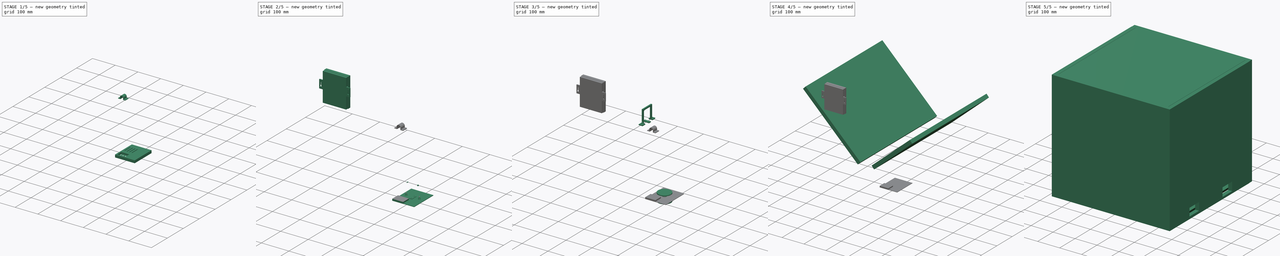
[diagram: build sequence overview — one tinted view per stage of 5, left to right]
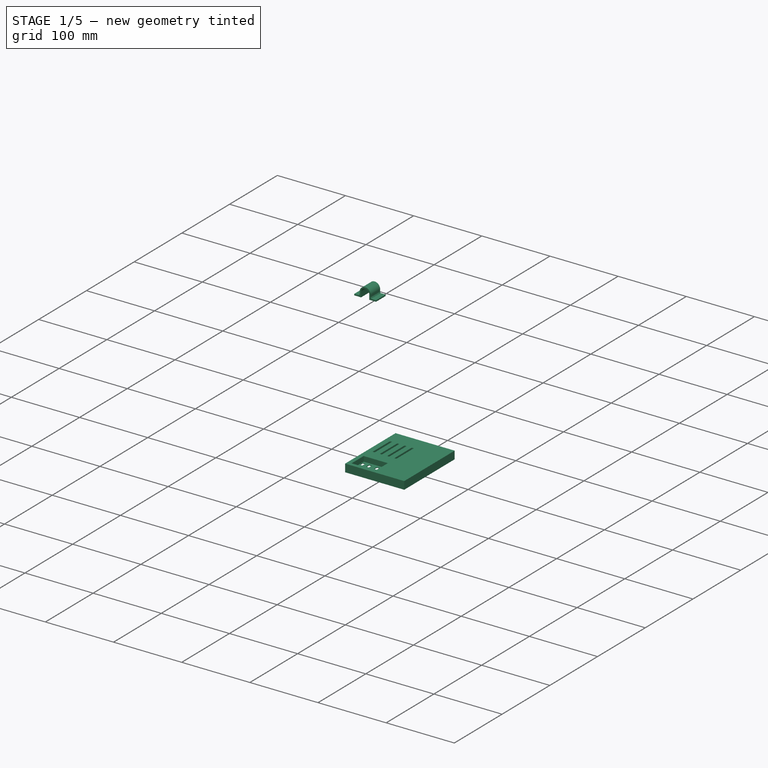
[diagram: stage 1 of 5 — iso view after this stage's code; geometry added in this stage tinted green]
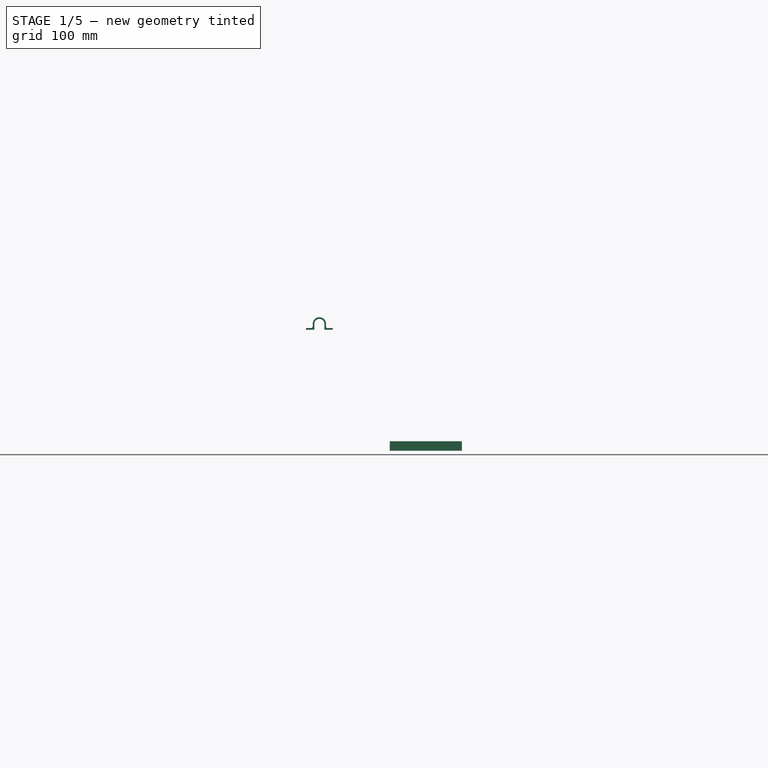
[diagram: stage 1 of 5 — front view after this stage's code; geometry added in this stage tinted green]
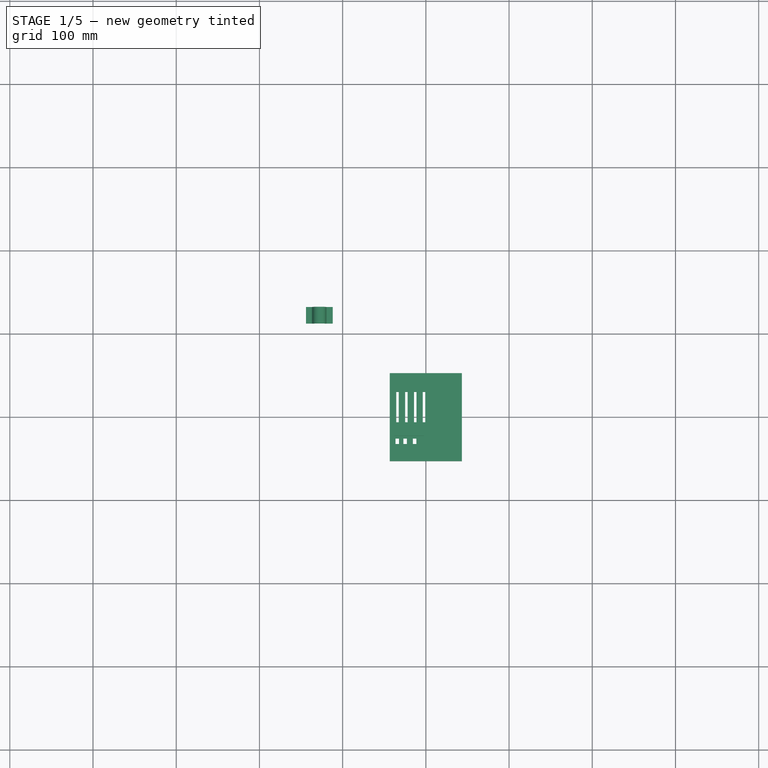
[diagram: stage 1 of 5 — top view after this stage's code; geometry added in this stage tinted green]
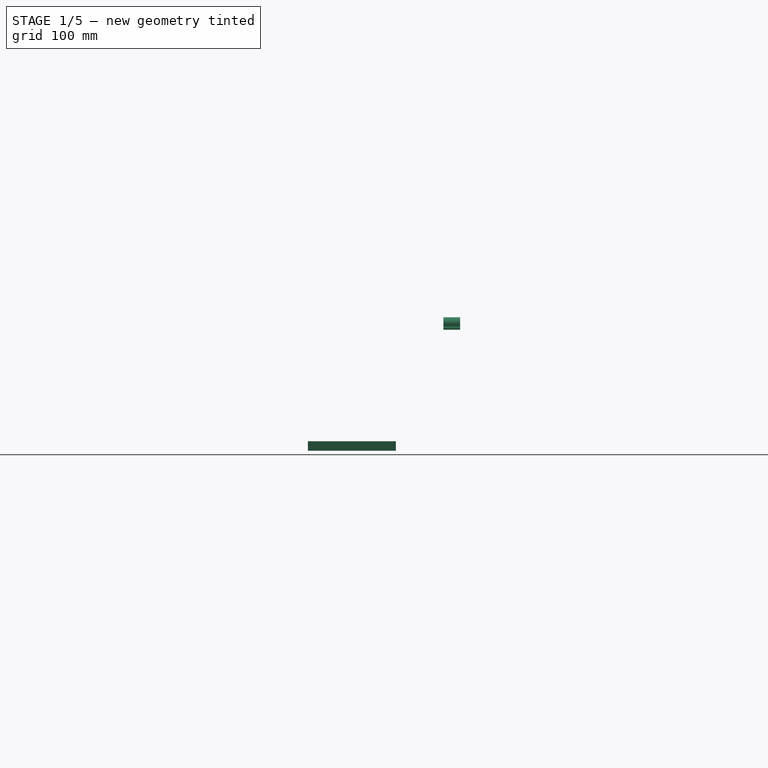
[diagram: stage 1 of 5 — right view after this stage's code; geometry added in this stage tinted green]
FCSTD DOCUMENT  (FreeCAD 0.16R6712 (Git))
Label: FreeCad_dimention_et_impressions_3D
License: All rights reserved
LicenseURL: http://en.wikipedia.org/wiki/All_rights_reserved
objects: PartDesign::Pad×70, Sketcher::SketchObject×69, Part::MultiFuse×19, App::DocumentObjectGroup×14, Part::Cut×11, Part::Part2DObjectPython×8, Part::Cone×6, PartDesign::Pocket×5, Part::Fuse×1
note: 264 computed .brp shape members not serialized (recipe doc carries the construction recipe); baked Part::Feature solids carry a one-line shape summary decoded from their .brp

FEATURE [Sketcher::SketchObject] Sketch010
  sketch-geometry (16):
    g0: LineSegment StartX=-24.9398 StartY=30.275 StartZ=0 EndX=-21.9398 EndY=30.275 EndZ=0
    g1: LineSegment StartX=-21.9398 StartY=30.275 StartZ=0 EndX=-21.9398 EndY=-6.225 EndZ=0
    g2: LineSegment StartX=-21.9398 StartY=-6.225 StartZ=0 EndX=-24.9398 EndY=-6.225 EndZ=0
    g3: LineSegment StartX=-24.9398 StartY=-6.225 StartZ=0 EndX=-24.9398 EndY=30.275 EndZ=0
    g4: LineSegment StartX=-14.3298 StartY=30.275 StartZ=0 EndX=-11.3298 EndY=30.275 EndZ=0
    g5: LineSegment StartX=-11.3298 StartY=30.275 StartZ=0 EndX=-11.3298 EndY=-6.225 EndZ=0
    g6: LineSegment StartX=-11.3298 StartY=-6.225 StartZ=0 EndX=-14.3298 EndY=-6.225 EndZ=0
    g7: LineSegment StartX=-14.3298 StartY=-6.225 StartZ=0 EndX=-14.3298 EndY=30.275 EndZ=0
    g8: LineSegment StartX=-3.7198 StartY=30.275 StartZ=0 EndX=-0.7198 EndY=30.275 EndZ=0
    g9: LineSegment StartX=-0.7198 StartY=30.275 StartZ=0 EndX=-0.7198 EndY=-6.225 EndZ=0
    g10: LineSegment StartX=-0.7198 StartY=-6.225 StartZ=0 EndX=-3.7198 EndY=-6.225 EndZ=0
    g11: LineSegment StartX=-3.7198 StartY=-6.225 StartZ=0 EndX=-3.7198 EndY=30.275 EndZ=0
    g12: LineSegment StartX=-35.5498 StartY=30.275 StartZ=0 EndX=-32.5199 EndY=30.275 EndZ=0
    g13: LineSegment StartX=-32.5199 StartY=30.275 StartZ=0 EndX=-32.5199 EndY=-6.225 EndZ=0
    g14: LineSegment StartX=-32.5199 StartY=-6.225 StartZ=0 EndX=-35.5498 EndY=-6.225 EndZ=0
    g15: LineSegment StartX=-35.5498 StartY=-6.225 StartZ=0 EndX=-35.5498 EndY=30.275 EndZ=0
  constraints (43):
    c: Coincident(g0,g1)
    c: Coincident(g1,g2)
    c: Coincident(g2,g3)
    c: Coincident(g3,g0)
    c: Horizontal(g0)
    c: Horizontal(g2)
    c: Vertical(g1)
    c: Vertical(g3)
    c: Coincident(g4,g5)
    c: Coincident(g5,g6)
    c: Coincident(g6,g7)
    c: Coincident(g7,g4)
    c: Horizontal(g4)
    c: Horizontal(g6)
    c: Vertical(g5)
    c: Vertical(g7)
    c: Coincident(g8,g9)
    c: Coincident(g9,g10)
    c: Coincident(g10,g11)
    c: Coincident(g11,g8)
    c: Horizontal(g8)
    c: Horizontal(g10)
    c: Vertical(g9)
    c: Vertical(g11)
    c: DistanceX(g0,g0) = 3
    c: DistanceX(g4,g4) = 3
    c: DistanceX(g8,g8) = 3
    c: Coincident(g12,g13)
    c: Coincident(g13,g14)
    c: Coincident(g14,g15)
    c: Coincident(g15,g12)
    c: Horizontal(g12)
    c: Horizontal(g14)
    c: Vertical(g13)
    c: Vertical(g15)
    c: DistanceY(g-1,g12) = 30.275
    c: DistanceY(g14,g-1) = 6.225
    c: DistanceY(g-1,g0) = 30.275
    c: DistanceY(g-1,g4) = 30.275
    c: DistanceY(g-1,g8) = 30.275
    c: DistanceY(g2,g-1) = 6.225
    c: DistanceY(g6,g-1) = 6.225
    c: DistanceY(g10,g-1) = 6.225
FEATURE [PartDesign::Pad] Pad049
  Length = 18
  Length2 = 100
  Sketch = -> Sketch010
  Type = 0
FEATURE [Sketcher::SketchObject] Sketch057
  sketch-geometry (12):
    g0: LineSegment StartX=-36.5048 StartY=-25.7815 StartZ=0 EndX=-32.3548 EndY=-25.7815 EndZ=0
    g1: LineSegment StartX=-32.3548 StartY=-25.7815 StartZ=0 EndX=-32.3548 EndY=-32.2815 EndZ=0
    g2: LineSegment StartX=-32.3548 StartY=-32.2815 StartZ=0 EndX=-36.5048 EndY=-32.2815 EndZ=0
    g3: LineSegment StartX=-36.5048 StartY=-32.2815 StartZ=0 EndX=-36.5048 EndY=-25.7815 EndZ=0
    g4: LineSegment StartX=-27.0348 StartY=-25.7815 StartZ=0 EndX=-22.8848 EndY=-25.7815 EndZ=0
    g5: LineSegment StartX=-22.8848 StartY=-25.7815 StartZ=0 EndX=-22.8848 EndY=-32.2815 EndZ=0
    g6: LineSegment StartX=-22.8848 StartY=-32.2815 StartZ=0 EndX=-27.0348 EndY=-32.2815 EndZ=0
    g7: LineSegment StartX=-27.0348 StartY=-32.2815 StartZ=0 EndX=-27.0348 EndY=-25.7815 EndZ=0
    g8: LineSegment StartX=-15.5948 StartY=-25.7815 StartZ=0 EndX=-11.4448 EndY=-25.7815 EndZ=0
    g9: LineSegment StartX=-11.4448 StartY=-25.7815 StartZ=0 EndX=-11.4448 EndY=-32.2815 EndZ=0
    g10: LineSegment StartX=-11.4448 StartY=-32.2815 StartZ=0 EndX=-15.5948 EndY=-32.2815 EndZ=0
    g11: LineSegment StartX=-15.5948 StartY=-32.2815 StartZ=0 EndX=-15.5948 EndY=-25.7815 EndZ=0
  constraints (27):
    c: Coincident(g0,g1)
    c: Coincident(g1,g2)
    c: Coincident(g2,g3)
    c: Coincident(g3,g0)
    c: Horizontal(g0)
    c: Horizontal(g2)
    c: Vertical(g1)
    c: Vertical(g3)
    c: Coincident(g4,g5)
    c: Coincident(g5,g6)
    c: Coincident(g6,g7)
    c: Coincident(g7,g4)
    c: Horizontal(g4)
    c: Horizontal(g6)
    c: Vertical(g5)
    c: Vertical(g7)
    c: Coincident(g8,g9)
    c: Coincident(g9,g10)
    c: Coincident(g10,g11)
    c: Coincident(g11,g8)
    c: Horizontal(g8)
    c: Horizontal(g10)
    c: Vertical(g9)
    c: Vertical(g11)
    c: DistanceY(g1,g1) = 6.5
    c: DistanceY(g5,g5) = 6.5
    c: DistanceY(g9,g9) = 6.5
FEATURE [PartDesign::Pad] Pad050
  Length = 9
  Length2 = 100
  Sketch = -> Sketch057
  Type = 0
FEATURE [Sketcher::SketchObject] Sketch058
  Placement = pos=(0,0,12) rot=(0,0,1;0rad)
  sketch-geometry (4):
    g0: LineSegment StartX=-42.75 StartY=52.25 StartZ=0 EndX=42.75 EndY=52.25 EndZ=0
    g1: LineSegment StartX=42.75 StartY=52.25 StartZ=0 EndX=42.75 EndY=-52.25 EndZ=0
    g2: LineSegment StartX=42.75 StartY=-52.25 StartZ=0 EndX=-42.75 EndY=-52.25 EndZ=0
    g3: LineSegment StartX=-42.75 StartY=-52.25 StartZ=0 EndX=-42.75 EndY=52.25 EndZ=0
  constraints (12):
    c: Coincident(g0,g1)
    c: Coincident(g1,g2)
    c: Coincident(g2,g3)
    c: Coincident(g3,g0)
    c: Horizontal(g0)
    c: Horizontal(g2)
    c: Vertical(g1)
    c: Vertical(g3)
    c: Symmetric(g0,g0,g-2)
    c: Symmetric(g0,g2,g-1)
    c: DistanceX(g0,g0) = 85.5
    c: DistanceY(g3,g3) = 104.5
FEATURE [PartDesign::Pad] Pad051
  Length = 3
  Length2 = 100
  Placement = pos=(0,0,12) rot=(0,0,1;0rad)
  Sketch = -> Sketch058
  Type = 0
FEATURE [Sketcher::SketchObject] Sketch060
  Placement = pos=(0,0,6.5) rot=(0,0,1;0rad)
  sketch-geometry (4):
    g0: LineSegment StartX=-39.7031 StartY=-19.9981 StartZ=0 EndX=0 EndY=-19.9981 EndZ=0
    g1: LineSegment StartX=0 StartY=-19.9981 StartZ=0 EndX=0 EndY=-49.7442 EndZ=0
    g2: LineSegment StartX=0 StartY=-49.7442 StartZ=0 EndX=-39.7031 EndY=-49.7442 EndZ=0
    g3: LineSegment StartX=-39.7031 StartY=-49.7442 StartZ=0 EndX=-39.7031 EndY=-19.9981 EndZ=0
  constraints (9):
    c: Coincident(g0,g1)
    c: Coincident(g1,g2)
    c: Coincident(g2,g3)
    c: Coincident(g3,g0)
    c: Horizontal(g0)
    c: Horizontal(g2)
    c: Vertical(g1)
    c: Vertical(g3)
    c: PointOnObject(g0,g-2)
FEATURE [PartDesign::Pad] Pad054
  Length = 8.5
  Length2 = 100
  Placement = pos=(0,0,6.5) rot=(0,0,1;0rad)
  Sketch = -> Sketch060
  Type = 0
FEATURE [Part::MultiFuse] Fusion014
  Shapes = -> [Pad054,Pad051]
FEATURE [Sketcher::SketchObject] Sketch061
  Placement = pos=(0,0,15) rot=(0,0,1;0rad)
  Support = -> Fusion014 [Face12]
  sketch-geometry (4):
    g0: LineSegment StartX=-37.4202 StartY=-22.3838 StartZ=0 EndX=-2 EndY=-22.3838 EndZ=0
    g1: LineSegment StartX=-2 StartY=-22.3838 StartZ=0 EndX=-2 EndY=-47.7195 EndZ=0
    g2: LineSegment StartX=-2 StartY=-47.7195 StartZ=0 EndX=-37.4202 EndY=-47.7195 EndZ=0
    g3: LineSegment StartX=-37.4202 StartY=-47.7195 StartZ=0 EndX=-37.4202 EndY=-22.3838 EndZ=0
  constraints (8):
    c: Coincident(g0,g1)
    c: Coincident(g1,g2)
    c: Coincident(g2,g3)
    c: Coincident(g3,g0)
    c: Horizontal(g0)
    c: Horizontal(g2)
    c: Vertical(g1)
    c: Vertical(g3)
FEATURE [PartDesign::Pocket] Pocket004
  Length = 7.5
  Sketch = -> Sketch061
  Type = 0
FEATURE [Part::MultiFuse] Fusion015
  Shapes = -> [Pad049,Pad050]
FEATURE [Part::Cut] Cut009
  Base = -> Pocket004
  Tool = -> Fusion015
FEATURE [Sketcher::SketchObject] Sketch062
  Placement = pos=(0,0,15) rot=(0,0,1;0rad)
  sketch-geometry (8):
    g0: LineSegment StartX=-42.4573 StartY=52.1 StartZ=0 EndX=42.7427 EndY=52.1 EndZ=0
    g1: LineSegment StartX=42.7427 StartY=52.1 StartZ=0 EndX=42.7427 EndY=-52.1 EndZ=0
    g2: LineSegment StartX=42.7427 StartY=-52.1 StartZ=0 EndX=-42.4573 EndY=-52.1 EndZ=0
    g3: LineSegment StartX=-42.4573 StartY=-52.1 StartZ=0 EndX=-42.4573 EndY=52.1 EndZ=0
    g4: LineSegment StartX=-43.35 StartY=52.85 StartZ=0 EndX=43.35 EndY=52.85 EndZ=0
    g5: LineSegment StartX=43.35 StartY=52.85 StartZ=0 EndX=43.35 EndY=-52.85 EndZ=0
    g6: LineSegment StartX=43.35 StartY=-52.85 StartZ=0 EndX=-43.35 EndY=-52.85 EndZ=0
    g7: LineSegment StartX=-43.35 StartY=-52.85 StartZ=0 EndX=-43.35 EndY=52.85 EndZ=0
  constraints (24):
    c: Coincident(g0,g1)
    c: Coincident(g1,g2)
    c: Coincident(g2,g3)
    c: Coincident(g3,g0)
    c: Horizontal(g0)
    c: Horizontal(g2)
    c: Vertical(g1)
    c: Vertical(g3)
    c: Symmetric(g0,g2,g-1)
    c: DistanceX(g0,g0) = 85.2
    c: DistanceY(g3,g3) = 104.2
    c: Coincident(g4,g5)
    c: Coincident(g5,g6)
    c: Coincident(g6,g7)
    c: Coincident(g7,g4)
    c: Horizontal(g4)
    c: Horizontal(g6)
    c: Vertical(g5)
    c: Vertical(g7)
    c: Symmetric(g5,g6,g-2)
    c: Symmetric(g4,g4,g-2)
    c: DistanceX(g4,g4) = 86.7
    c: DistanceY(g7,g7) = 105.7
    c: Symmetric(g4,g6,g-1)
FEATURE [PartDesign::Pad] Pad055
  Length = 11.5
  Length2 = 100
  Placement = pos=(0,0,15) rot=(0,0,1;0rad)
  Reversed = true
  Sketch = -> Sketch062
  Type = 0
FEATURE [Part::Part2DObjectPython] ShapeString  # Draft 2D object (typed FeaturePython)
  FontFile = C:/Program Files/FreeCAD 0.16/bin/Lib/site-packages/matplotlib/mpl-data/fonts/ttf/VeraBd.ttf
  Placement = pos=(-23,42,15) rot=(0,0,1;0rad)
  Size = 9
  String = H
  Tracking = 0
FEATURE [PartDesign::Pad] Pad056
  Length = 2
  Length2 = 100
  Placement = pos=(-23,42,15) rot=(0,0,1;0rad)
  Reversed = true
  Sketch = -> ShapeString
  Type = 0
FEATURE [App::DocumentObjectGroup] Groupe011  label="boitier_other"
  Group = -> [Fusion014,Pad053,Sketch052,Pad041]
FEATURE [Part::Part2DObjectPython] ShapeString006  # Draft 2D object (typed FeaturePython)
  FontFile = C:/Program Files/FreeCAD 0.16/bin/Lib/site-packages/matplotlib/mpl-data/fonts/ttf/VeraBd.ttf
  Placement = pos=(2,42,15) rot=(0,0,1;0rad)
  Size = 9
  String = Dose
  Tracking = 0
FEATURE [PartDesign::Pad] Pad062
  Length = 2
  Length2 = 100
  Placement = pos=(2,42,15) rot=(0,0,1;0rad)
  Reversed = true
  Sketch = -> ShapeString006
  Type = 0
FEATURE [Sketcher::SketchObject] Sketch066
  Placement = pos=(1,0,15) rot=(0,0,1;0rad)
  sketch-geometry (40):
    g0: LineSegment StartX=0 StartY=-2.3009 StartZ=0 EndX=3 EndY=-2.3009 EndZ=0
    g1: LineSegment StartX=3 StartY=-2.3009 StartZ=0 EndX=3 EndY=-3.8009 EndZ=0
    g2: LineSegment StartX=3 StartY=-3.8009 StartZ=0 EndX=0 EndY=-3.8009 EndZ=0
    g3: LineSegment StartX=0 StartY=-3.8009 StartZ=0 EndX=0 EndY=-2.3009 EndZ=0
    g4: LineSegment StartX=0 StartY=1.0491 StartZ=0 EndX=3 EndY=1.0491 EndZ=0
    g5: LineSegment StartX=3 StartY=1.0491 StartZ=0 EndX=3 EndY=-0.450898 EndZ=0
    g6: LineSegment StartX=3 StartY=-0.450898 StartZ=0 EndX=0 EndY=-0.450898 EndZ=0
    g7: LineSegment StartX=0 StartY=-0.450898 StartZ=0 EndX=0 EndY=1.0491 EndZ=0
    g8: LineSegment StartX=0 StartY=4.3991 StartZ=0 EndX=3 EndY=4.3991 EndZ=0
    g9: LineSegment StartX=3 StartY=4.3991 StartZ=0 EndX=3 EndY=2.8991 EndZ=0
    g10: LineSegment StartX=3 StartY=2.8991 StartZ=0 EndX=0 EndY=2.8991 EndZ=0
    g11: LineSegment StartX=0 StartY=2.8991 StartZ=0 EndX=0 EndY=4.3991 EndZ=0
    g12: LineSegment StartX=0 StartY=7.7491 StartZ=0 EndX=3 EndY=7.7491 EndZ=0
    g13: LineSegment StartX=3 StartY=7.7491 StartZ=0 EndX=3 EndY=6.2491 EndZ=0
    g14: LineSegment StartX=3 StartY=6.2491 StartZ=0 EndX=0 EndY=6.2491 EndZ=0
    g15: LineSegment StartX=0 StartY=6.2491 StartZ=0 EndX=0 EndY=7.7491 EndZ=0
    g16: LineSegment StartX=0 StartY=11.0991 StartZ=0 EndX=3 EndY=11.0991 EndZ=0
    g17: LineSegment StartX=3 StartY=11.0991 StartZ=0 EndX=3 EndY=9.5991 EndZ=0
    g18: LineSegment StartX=3 StartY=9.5991 StartZ=0 EndX=0 EndY=9.5991 EndZ=0
    g19: LineSegment StartX=0 StartY=9.5991 StartZ=0 EndX=0 EndY=11.0991 EndZ=0
    g20: LineSegment StartX=0 StartY=14.4491 StartZ=0 EndX=3 EndY=14.4491 EndZ=0
    g21: LineSegment StartX=3 StartY=14.4491 StartZ=0 EndX=3 EndY=12.9491 EndZ=0
    g22: LineSegment StartX=3 StartY=12.9491 StartZ=0 EndX=0 EndY=12.9491 EndZ=0
    g23: LineSegment StartX=0 StartY=12.9491 StartZ=0 EndX=0 EndY=14.4491 EndZ=0
    g24: LineSegment StartX=0 StartY=17.7991 StartZ=0 EndX=3 EndY=17.7991 EndZ=0
    g25: LineSegment StartX=3 StartY=17.7991 StartZ=0 EndX=3 EndY=16.2991 EndZ=0
    g26: LineSegment StartX=3 StartY=16.2991 StartZ=0 EndX=0 EndY=16.2991 EndZ=0
    g27: LineSegment StartX=0 StartY=16.2991 StartZ=0 EndX=0 EndY=17.7991 EndZ=0
    g28: LineSegment StartX=0 StartY=21.1491 StartZ=0 EndX=3 EndY=21.1491 EndZ=0
    g29: LineSegment StartX=3 StartY=21.1491 StartZ=0 EndX=3 EndY=19.6491 EndZ=0
    g30: LineSegment StartX=3 StartY=19.6491 StartZ=0 EndX=0 EndY=19.6491 EndZ=0
    g31: LineSegment StartX=0 StartY=19.6491 StartZ=0 EndX=0 EndY=21.1491 EndZ=0
    g32: LineSegment StartX=0 StartY=24.4991 StartZ=0 EndX=3 EndY=24.4991 EndZ=0
    g33: LineSegment StartX=3 StartY=24.4991 StartZ=0 EndX=3 EndY=22.9991 EndZ=0
    g34: LineSegment StartX=3 StartY=22.9991 StartZ=0 EndX=0 EndY=22.9991 EndZ=0
    g35: LineSegment StartX=0 StartY=22.9991 StartZ=0 EndX=0 EndY=24.4991 EndZ=0
    g36: LineSegment StartX=0 StartY=27.8491 StartZ=0 EndX=3 EndY=27.8491 EndZ=0
    g37: LineSegment StartX=3 StartY=27.8491 StartZ=0 EndX=3 EndY=26.3491 EndZ=0
    g38: LineSegment StartX=3 StartY=26.3491 StartZ=0 EndX=0 EndY=26.3491 EndZ=0
    g39: LineSegment StartX=0 StartY=26.3491 StartZ=0 EndX=0 EndY=27.8491 EndZ=0
  constraints (120):
    c: Coincident(g0,g1)
    c: Coincident(g1,g2)
    c: Coincident(g2,g3)
    c: Horizontal(g0)
    c: Horizontal(g2)
    c: Vertical(g1)
    c: Vertical(g3)
    c: PointOnObject(g0,g-2)
    c: DistanceY(g1,g1) = 1.5
    c: DistanceX(g2,g2) = 3
    c: Coincident(g4,g5)
    c: Coincident(g5,g6)
    c: Coincident(g6,g7)
    c: Coincident(g7,g4)
    c: Horizontal(g4)
    c: Horizontal(g6)
    c: Vertical(g5)
    c: Vertical(g7)
    c: Coincident(g8,g9)
    c: Coincident(g9,g10)
    c: Coincident(g10,g11)
    c: Coincident(g11,g8)
    c: Horizontal(g8)
    c: Horizontal(g10)
    c: Vertical(g9)
    c: Vertical(g11)
    c: Coincident(g12,g13)
    c: Coincident(g13,g14)
    c: Coincident(g14,g15)
    c: Coincident(g15,g12)
    c: Horizontal(g12)
    c: Horizontal(g14)
    c: Vertical(g13)
    c: Vertical(g15)
    c: Coincident(g16,g17)
    c: Coincident(g17,g18)
    c: Coincident(g18,g19)
    c: Coincident(g19,g16)
    c: Horizontal(g16)
    c: Horizontal(g18)
    c: Vertical(g17)
    c: Vertical(g19)
    c: Coincident(g20,g21)
    c: Coincident(g21,g22)
    c: Coincident(g22,g23)
    c: Coincident(g23,g20)
    c: Horizontal(g20)
    c: Horizontal(g22)
    c: Vertical(g21)
    c: Vertical(g23)
    c: Coincident(g24,g25)
    c: Coincident(g25,g26)
    c: Coincident(g26,g27)
    c: Coincident(g27,g24)
    c: Horizontal(g24)
    c: Horizontal(g26)
    c: Vertical(g25)
    c: Vertical(g27)
    c: Coincident(g28,g29)
    c: Coincident(g29,g30)
    c: Coincident(g30,g31)
    c: Coincident(g31,g28)
    c: Horizontal(g28)
    c: Horizontal(g30)
    c: Vertical(g29)
    c: Vertical(g31)
    c: Coincident(g32,g33)
    c: Coincident(g33,g34)
    c: Coincident(g34,g35)
    c: Coincident(g35,g32)
    c: Horizontal(g32)
    c: Horizontal(g34)
    c: Vertical(g33)
    c: Vertical(g35)
    c: Coincident(g36,g37)
    c: Coincident(g37,g38)
    c: Coincident(g38,g39)
    c: Coincident(g39,g36)
    c: Horizontal(g36)
    c: Horizontal(g38)
    c: Vertical(g37)
    c: Vertical(g39)
    c: DistanceY(g39,g39) = 1.5
    c: DistanceY(g35,g35) = 1.5
    c: DistanceY(g31,g31) = 1.5
    c: DistanceY(g27,g27) = 1.5
    c: DistanceY(g23,g23) = 1.5
    c: DistanceY(g19,g19) = 1.5
    c: DistanceY(g15,g15) = 1.5
    c: DistanceY(g11,g11) = 1.5
    c: DistanceY(g7,g7) = 1.5
    c: DistanceX(g38,g38) = 3
    c: DistanceX(g34,g34) = 3
    c: DistanceX(g30,g30) = 3
    c: DistanceX(g26,g26) = 3
    c: DistanceX(g22,g22) = 3
    c: DistanceX(g18,g18) = 3
    c: DistanceX(g14,g14) = 3
    c: DistanceX(g10,g10) = 3
    c: DistanceX(g6,g6) = 3
    c: PointOnObject(g6,g-2)
    c: PointOnObject(g10,g-2)
    c: PointOnObject(g14,g-2)
    c: PointOnObject(g18,g-2)
    c: PointOnObject(g22,g-2)
    c: PointOnObject(g26,g-2)
    c: PointOnObject(g30,g-2)
    c: PointOnObject(g34,g-2)
    c: PointOnObject(g38,g-2)
    c: DistanceY(g0,g6) = 1.85
    c: DistanceY(g4,g10) = 1.85
    c: DistanceY(g8,g14) = 1.85
    c: DistanceY(g12,g18) = 1.85
    c: DistanceY(g16,g22) = 1.85
    c: DistanceY(g20,g26) = 1.85
    c: DistanceY(g24,g30) = 1.85
    c: DistanceY(g28,g34) = 1.85
    c: DistanceY(g32,g38) = 1.85
    c: PointOnObject(g2,g-2)
    c: Coincident(g3,g0)
FEATURE [PartDesign::Pad] Pad064
  Length = 2
  Length2 = 100
  Placement = pos=(1,0,15) rot=(0,0,1;0rad)
  Reversed = true
  Sketch = -> Sketch066
  Type = 0
FEATURE [Part::Part2DObjectPython] ShapeString012  # Draft 2D object (typed FeaturePython)
  FontFile = C:/Program Files/FreeCAD 0.16/bin/Lib/site-packages/matplotlib/mpl-data/fonts/ttf/VeraBd.ttf
  Placement = pos=(3,-41.3,15) rot=(0,0,1;0rad)
  Size = 9
  String = 0
  Tracking = 0
FEATURE [Part::Part2DObjectPython] ShapeString013  # Draft 2D object (typed FeaturePython)
  FontFile = C:/Program Files/FreeCAD 0.16/bin/Lib/site-packages/matplotlib/mpl-data/fonts/ttf/VeraBd.ttf
  Placement = pos=(5.2,-29.3,15) rot=(0,0,1;0rad)
  Size = 9
  String = I
  Tracking = 0
FEATURE [PartDesign::Pad] Pad070
  Length = 2
  Length2 = 100
  Placement = pos=(3,-41.3,15) rot=(0,0,1;0rad)
  Reversed = true
  Sketch = -> ShapeString012
  Type = 0
FEATURE [PartDesign::Pad] Pad071
  Length = 2
  Length2 = 100
  Placement = pos=(5.2,-29.3,15) rot=(0,0,1;0rad)
  Reversed = true
  Sketch = -> ShapeString013
  Type = 0
FEATURE [Part::Part2DObjectPython] ShapeString014  # Draft 2D object (typed FeaturePython)
  FontFile = C:/Program Files/FreeCAD 0.16/bin/Lib/site-packages/matplotlib/mpl-data/fonts/ttf/VeraBd.ttf
  Placement = pos=(-32,32,15) rot=(0,0,1;0rad)
  Size = 9
  String = 6-22
  Tracking = 0
FEATURE [PartDesign::Pad] Pad077
  Length = 2
  Length2 = 100
  Placement = pos=(-32,32,15) rot=(0,0,1;0rad)
  Reversed = true
  Sketch = -> ShapeString014
  Type = 0
FEATURE [Sketcher::SketchObject] Sketch072
  Placement = pos=(-20,0,15) rot=(0,0,1;0rad)
  sketch-geometry (36):
    g0: LineSegment StartX=0 StartY=-2.53031 StartZ=0 EndX=3 EndY=-2.53031 EndZ=0
    g1: LineSegment StartX=3 StartY=-2.53031 StartZ=0 EndX=3 EndY=-4.03031 EndZ=0
    g2: LineSegment StartX=3 StartY=-4.03031 StartZ=0 EndX=0 EndY=-4.03031 EndZ=0
    g3: LineSegment StartX=0 StartY=-4.03031 StartZ=0 EndX=0 EndY=-2.53031 EndZ=0
    g4: LineSegment StartX=3 StartY=1.26969 StartZ=0 EndX=3 EndY=-0.230314 EndZ=0
    g5: LineSegment StartX=3 StartY=-0.230314 StartZ=0 EndX=0 EndY=-0.230314 EndZ=0
    g6: LineSegment StartX=0 StartY=-0.230314 StartZ=0 EndX=0 EndY=1.26969 EndZ=0
    g7: LineSegment StartX=0 StartY=5.06969 StartZ=0 EndX=3 EndY=5.06969 EndZ=0
    g8: LineSegment StartX=3 StartY=5.06969 StartZ=0 EndX=3 EndY=3.56969 EndZ=0
    g9: LineSegment StartX=3 StartY=3.56969 StartZ=0 EndX=0 EndY=3.56969 EndZ=0
    g10: LineSegment StartX=0 StartY=3.56969 StartZ=0 EndX=0 EndY=5.06969 EndZ=0
    g11: LineSegment StartX=0 StartY=8.86969 StartZ=0 EndX=3 EndY=8.86969 EndZ=0
    g12: LineSegment StartX=3 StartY=8.86969 StartZ=0 EndX=3 EndY=7.36969 EndZ=0
    g13: LineSegment StartX=3 StartY=7.36969 StartZ=0 EndX=0 EndY=7.36969 EndZ=0
    g14: LineSegment StartX=0 StartY=7.36969 StartZ=0 EndX=0 EndY=8.86969 EndZ=0
    g15: LineSegment StartX=0 StartY=12.6697 StartZ=0 EndX=3 EndY=12.6697 EndZ=0
    g16: LineSegment StartX=3 StartY=12.6697 StartZ=0 EndX=3 EndY=11.1697 EndZ=0
    g17: LineSegment StartX=3 StartY=11.1697 StartZ=0 EndX=0 EndY=11.1697 EndZ=0
    g18: LineSegment StartX=0 StartY=11.1697 StartZ=0 EndX=0 EndY=12.6697 EndZ=0
    g19: LineSegment StartX=0 StartY=16.4697 StartZ=0 EndX=3 EndY=16.4697 EndZ=0
    g20: LineSegment StartX=3 StartY=16.4697 StartZ=0 EndX=3 EndY=14.9697 EndZ=0
    g21: LineSegment StartX=3 StartY=14.9697 StartZ=0 EndX=0 EndY=14.9697 EndZ=0
    g22: LineSegment StartX=0 StartY=14.9697 StartZ=0 EndX=0 EndY=16.4697 EndZ=0
    g23: LineSegment StartX=0 StartY=20.2697 StartZ=0 EndX=3 EndY=20.2697 EndZ=0
    g24: LineSegment StartX=3 StartY=20.2697 StartZ=0 EndX=3 EndY=18.7697 EndZ=0
    g25: LineSegment StartX=3 StartY=18.7697 StartZ=0 EndX=0 EndY=18.7697 EndZ=0
    g26: LineSegment StartX=0 StartY=18.7697 StartZ=0 EndX=0 EndY=20.2697 EndZ=0
    g27: LineSegment StartX=0 StartY=24.0697 StartZ=0 EndX=3 EndY=24.0697 EndZ=0
    g28: LineSegment StartX=3 StartY=24.0697 StartZ=0 EndX=3 EndY=22.5697 EndZ=0
    g29: LineSegment StartX=3 StartY=22.5697 StartZ=0 EndX=0 EndY=22.5697 EndZ=0
    g30: LineSegment StartX=0 StartY=22.5697 StartZ=0 EndX=0 EndY=24.0697 EndZ=0
    g31: LineSegment StartX=0 StartY=27.8697 StartZ=0 EndX=3 EndY=27.8697 EndZ=0
    g32: LineSegment StartX=3 StartY=27.8697 StartZ=0 EndX=3 EndY=26.3697 EndZ=0
    g33: LineSegment StartX=3 StartY=26.3697 StartZ=0 EndX=0 EndY=26.3697 EndZ=0
    g34: LineSegment StartX=0 StartY=26.3697 StartZ=0 EndX=0 EndY=27.8697 EndZ=0
    g35: LineSegment StartX=0 StartY=1.26969 StartZ=0 EndX=3 EndY=1.26969 EndZ=0
  constraints (108):
    c: Coincident(g0,g1)
    c: Coincident(g1,g2)
    c: Coincident(g2,g3)
    c: Horizontal(g0)
    c: Horizontal(g2)
    c: Vertical(g1)
    c: Vertical(g3)
    c: PointOnObject(g0,g-2)
    c: DistanceY(g1,g1) = 1.5
    c: DistanceX(g2,g2) = 3
    c: Coincident(g4,g5)
    c: Coincident(g5,g6)
    c: Horizontal(g5)
    c: Vertical(g4)
    c: Vertical(g6)
    c: Coincident(g7,g8)
    c: Coincident(g8,g9)
    c: Coincident(g9,g10)
    c: Coincident(g10,g7)
    c: Horizontal(g7)
    c: Horizontal(g9)
    c: Vertical(g8)
    c: Vertical(g10)
    c: Coincident(g11,g12)
    c: Coincident(g12,g13)
    c: Coincident(g13,g14)
    c: Coincident(g14,g11)
    c: Horizontal(g11)
    c: Horizontal(g13)
    c: Vertical(g12)
    c: Vertical(g14)
    c: Coincident(g15,g16)
    c: Coincident(g16,g17)
    c: Coincident(g17,g18)
    c: Coincident(g18,g15)
    c: Horizontal(g15)
    c: Horizontal(g17)
    c: Vertical(g16)
    c: Vertical(g18)
    c: Coincident(g19,g20)
    c: Coincident(g20,g21)
    c: Coincident(g21,g22)
    c: Coincident(g22,g19)
    c: Horizontal(g19)
    c: Horizontal(g21)
    c: Vertical(g20)
    c: Vertical(g22)
    c: Coincident(g23,g24)
    c: Coincident(g24,g25)
    c: Coincident(g25,g26)
    c: Coincident(g26,g23)
    c: Horizontal(g23)
    c: Horizontal(g25)
    c: Vertical(g24)
    c: Vertical(g26)
    c: Coincident(g27,g28)
    c: Coincident(g28,g29)
    c: Coincident(g29,g30)
    c: Coincident(g30,g27)
    c: Horizontal(g27)
    c: Horizontal(g29)
    c: Vertical(g28)
    c: Vertical(g30)
    c: Coincident(g31,g32)
    c: Coincident(g32,g33)
    c: Coincident(g33,g34)
    c: Coincident(g34,g31)
    c: Horizontal(g31)
    c: Horizontal(g33)
    c: Vertical(g32)
    c: Vertical(g34)
    c: DistanceY(g34,g34) = 1.5
    c: DistanceY(g30,g30) = 1.5
    c: DistanceY(g26,g26) = 1.5
    c: DistanceY(g22,g22) = 1.5
    c: DistanceY(g18,g18) = 1.5
    c: DistanceY(g14,g14) = 1.5
    c: DistanceY(g10,g10) = 1.5
    c: DistanceY(g6,g6) = 1.5
    c: DistanceX(g33,g33) = 3
    c: DistanceX(g29,g29) = 3
    c: DistanceX(g25,g25) = 3
    c: DistanceX(g21,g21) = 3
    c: DistanceX(g17,g17) = 3
    c: DistanceX(g13,g13) = 3
    c: DistanceX(g9,g9) = 3
    c: DistanceX(g5,g5) = 3
    c: PointOnObject(g5,g-2)
    c: PointOnObject(g9,g-2)
    c: PointOnObject(g13,g-2)
    c: PointOnObject(g17,g-2)
    c: PointOnObject(g21,g-2)
    c: PointOnObject(g25,g-2)
    c: PointOnObject(g29,g-2)
    c: PointOnObject(g33,g-2)
    c: DistanceY(g0,g5) = 2.3
    c: DistanceY(g6,g9) = 2.3
    c: DistanceY(g7,g13) = 2.3
    c: DistanceY(g11,g17) = 2.3
    c: DistanceY(g15,g21) = 2.3
    c: DistanceY(g19,g25) = 2.3
    c: DistanceY(g23,g29) = 2.3
    c: DistanceY(g27,g33) = 2.3
    c: PointOnObject(g2,g-2)
    c: Coincident(g3,g0)
    c: Coincident(g35,g6)
    c: Coincident(g35,g4)
    c: Horizontal(g35)
FEATURE [PartDesign::Pad] Pad078
  Length = 2
  Length2 = 100
  Placement = pos=(-20,0,15) rot=(0,0,1;0rad)
  Reversed = true
  Sketch = -> Sketch072
  Type = 0
FEATURE [Part::Part2DObjectPython] ShapeString015  # Draft 2D object (typed FeaturePython)
  FontFile = C:/Program Files/FreeCAD 0.16/bin/Lib/site-packages/matplotlib/mpl-data/fonts/ttf/VeraBd.ttf
  Placement = pos=(3,32,15) rot=(0,0,1;0rad)
  Size = 9
  String = 1-10
  Tracking = 0
FEATURE [PartDesign::Pad] Pad079
  Length = 2
  Length2 = 100
  Placement = pos=(3,32,15) rot=(0,0,1;0rad)
  Reversed = true
  Sketch = -> ShapeString015
  Type = 0
FEATURE [Part::Part2DObjectPython] ShapeString016  # Draft 2D object (typed FeaturePython)
  FontFile = C:/Program Files/FreeCAD 0.16/bin/Lib/site-packages/matplotlib/mpl-data/fonts/ttf/VeraBd.ttf
  Placement = pos=(-8,-17,15) rot=(0,0,1;0rad)
  Size = 9
  String = +1
  Tracking = 0
FEATURE [PartDesign::Pad] Pad080
  Length = 2
  Length2 = 100
  Placement = pos=(-8,-17,15) rot=(0,0,1;0rad)
  Reversed = true
  Sketch = -> ShapeString016
  Type = 0
FEATURE [Part::Part2DObjectPython] ShapeString017  # Draft 2D object (typed FeaturePython)
  FontFile = C:/Program Files/FreeCAD 0.16/bin/Lib/site-packages/matplotlib/mpl-data/fonts/ttf/VeraBd.ttf
  Placement = pos=(-29,-17,15) rot=(0,0,1;0rad)
  Size = 9
  String = +2
  Tracking = 0
FEATURE [PartDesign::Pad] Pad081
  Length = 2
  Length2 = 100
  Placement = pos=(-29,-17,15) rot=(0,0,1;0rad)
  Reversed = true
  Sketch = -> ShapeString017
  Type = 0
FEATURE [Part::MultiFuse] Fusion019
  Shapes = -> [Pad071,Pad070,Pad062,Pad056,Pad064,Pad077,Pad078,Pad079,Pad080,Pad081]
FEATURE [App::DocumentObjectGroup] Groupe013  label="boitier_corp"
  Group = -> [Fusion021]
FEATURE [Part::MultiFuse] Fusion022
  Shapes = -> [Pad055,Cut009]
FEATURE [App::DocumentObjectGroup] Groupe014  label="boitier_capot"
  Group = -> [Cut010]
FEATURE [Sketcher::SketchObject] Sketch073
  Placement = pos=(-130,130,150) rot=(-0.57735,0.57735,-0.57735;4.18879rad)
  sketch-geometry (18):
    g0: ArcOfCircle CenterX=6.02921 CenterY=-2.01949 CenterZ=0 NormalX=0 NormalY=0 NormalZ=1 Radius=6.00005 StartAngle=4.70814 EndAngle=7.85824
    g1: ArcOfCircle CenterX=6.02112 CenterY=-2.01966 CenterZ=0 NormalX=0 NormalY=0 NormalZ=1 Radius=8.00019 StartAngle=4.72179 EndAngle=7.85619
    g2: GeomPoint [constr] X=1 Y=7.03932 Z=0
    g3: GeomPoint [constr] X=2.83541 Y=5.98051 Z=0
    g4: GeomPoint [constr] X=1 Y=-10.7745 Z=0
    g5: GeomPoint [constr] X=2.75414 Y=-10.0195 Z=0
    g6: LineSegment StartX=1 StartY=13.9805 StartZ=0 EndX=1 EndY=7.03932 EndZ=0
    g7: LineSegment StartX=1 StartY=7.03932 StartZ=0 EndX=2.83541 EndY=5.98051 EndZ=0
    g8: LineSegment StartX=2.83541 StartY=5.98051 StartZ=0 EndX=6.00346 EndY=5.98051 EndZ=0
    g9: LineSegment StartX=6.09637 StartY=-10.0195 StartZ=0 EndX=2.75414 EndY=-10.0195 EndZ=0
    g10: LineSegment StartX=2.75414 StartY=-10.0195 StartZ=0 EndX=1 EndY=-10.7745 EndZ=0
    g11: LineSegment StartX=1 StartY=-10.7745 StartZ=0 EndX=1 EndY=-18.0195 EndZ=0
    g12: LineSegment StartX=1 StartY=-18.0195 StartZ=0 EndX=-1 EndY=-18.0195 EndZ=0
    g13: LineSegment StartX=-1 StartY=-18.0195 StartZ=0 EndX=-1 EndY=-8.01949 EndZ=0
    g14: LineSegment StartX=-1 StartY=-8.01949 StartZ=0 EndX=6.0037 EndY=-8.01949 EndZ=0
    g15: LineSegment StartX=6.00363 StartY=3.98051 StartZ=0 EndX=-1 EndY=3.98051 EndZ=0
    g16: LineSegment StartX=-1 StartY=3.98051 StartZ=0 EndX=-1 EndY=13.9805 EndZ=0
    g17: LineSegment StartX=-1 StartY=13.9805 StartZ=0 EndX=1 EndY=13.9805 EndZ=0
  constraints (35):
    c: DistanceX(g16,g6) = 2
    c: Symmetric(g16,g6,g-2)
    c: Symmetric(g12,g11,g-2)
    c: DistanceX(g12,g11) = 2
    c: DistanceY(g15,g16) = 10
    c: DistanceY(g12,g13) = 10
    c: Coincident(g6,g2)
    c: Vertical(g6)
    c: Coincident(g7,g2)
    c: Coincident(g7,g3)
    c: Coincident(g8,g3)
    c: Coincident(g8,g1)
    c: Horizontal(g8)
    c: Coincident(g9,g1)
    c: Coincident(g9,g5)
    c: Horizontal(g9)
    c: Coincident(g10,g5)
    c: Coincident(g10,g4)
    c: Coincident(g11,g4)
    c: Vertical(g11)
    c: Coincident(g12,g11)
    c: Coincident(g13,g12)
    c: Vertical(g13)
    c: Coincident(g14,g13)
    c: Coincident(g14,g0)
    c: Horizontal(g14)
    c: Coincident(g15,g0)
    c: Horizontal(g15)
    c: Coincident(g16,g15)
    c: Vertical(g16)
    c: Coincident(g17,g16)
    c: Coincident(g17,g6)
    c: DistanceY(g15,g3) = 2
    c: DistanceY(g5,g13) = 2
    c: DistanceY(g0,g0) = 12
FEATURE [PartDesign::Pad] Pad082
  Length = 20
  Length2 = 100
  Placement = pos=(-130,130,150) rot=(-0.57735,0.57735,-0.57735;4.18879rad)
  Sketch = -> Sketch073
  Type = 0
FEATURE [App::DocumentObjectGroup] Groupe015  label="Support_gaine"
  Group = -> [Pad082]
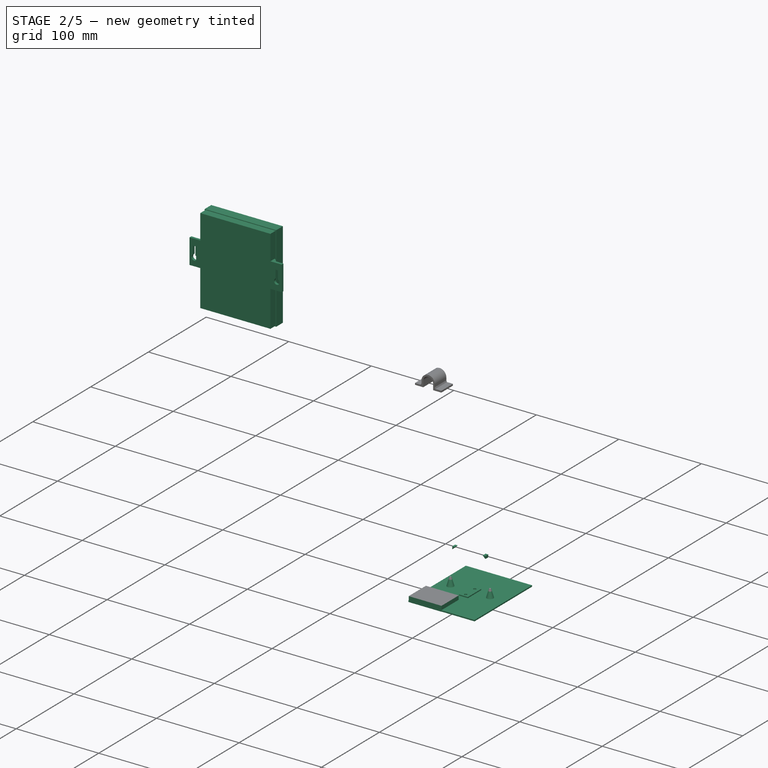
[diagram: stage 2 of 5 — iso view after this stage's code; geometry added in this stage tinted green]
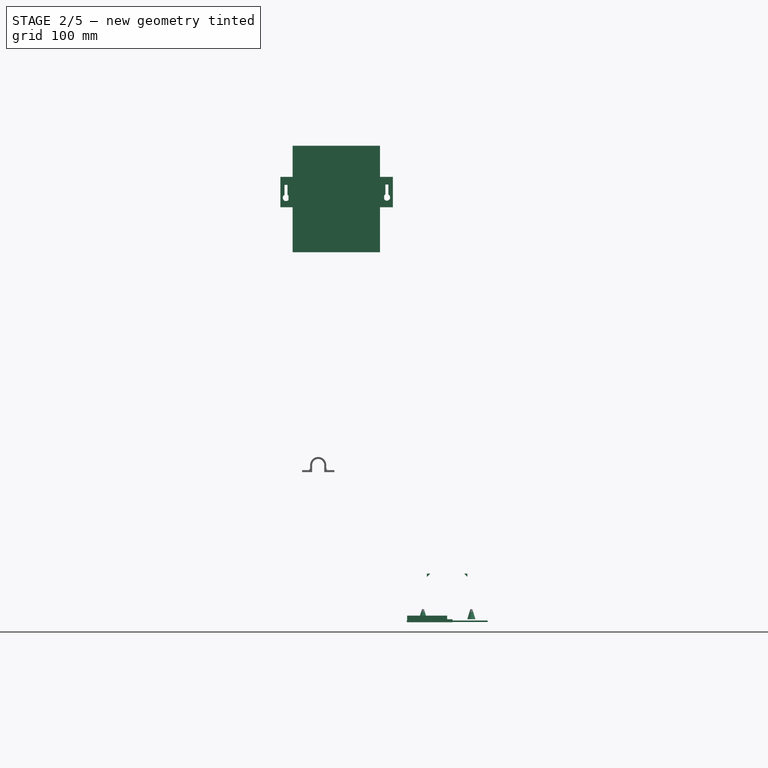
[diagram: stage 2 of 5 — front view after this stage's code; geometry added in this stage tinted green]
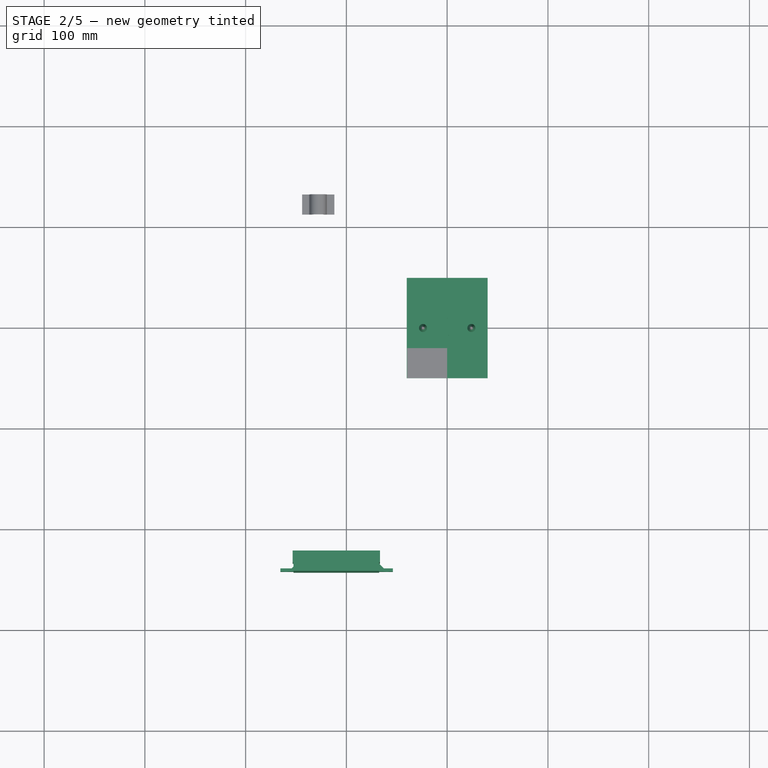
[diagram: stage 2 of 5 — top view after this stage's code; geometry added in this stage tinted green]
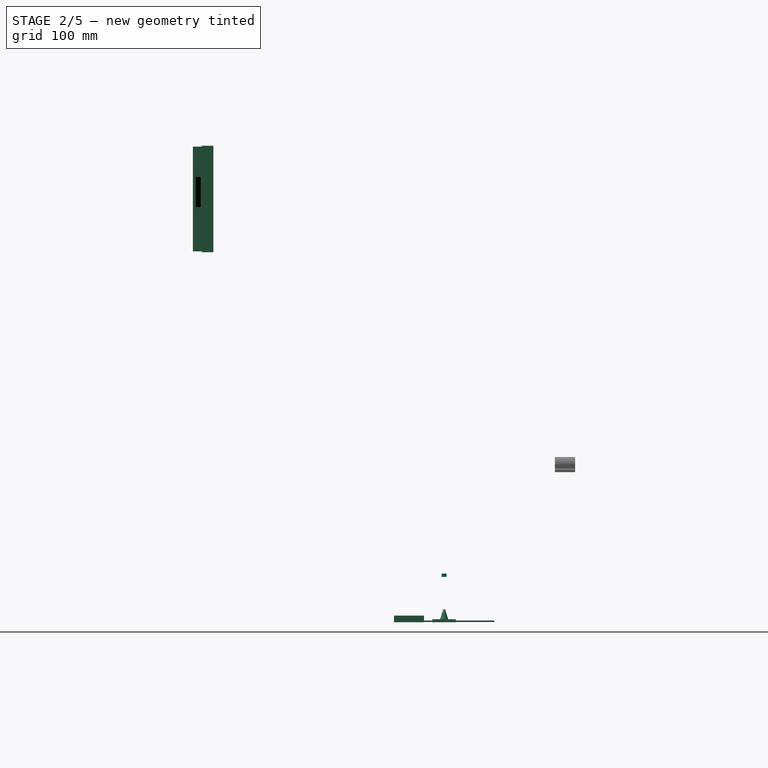
[diagram: stage 2 of 5 — right view after this stage's code; geometry added in this stage tinted green]
FEATURE [Part::Cone] Cone004  label="Cône004"
  Angle = 360
  Height = 10
  Placement = pos=(-24,0,3) rot=(0,0,1;0rad)
  Radius1 = 4
  Radius2 = 1
FEATURE [Part::Cone] Cone005  label="Cône005"
  Angle = 360
  Height = 10
  Placement = pos=(24,0,3) rot=(0,0,1;0rad)
  Radius1 = 4
  Radius2 = 1
FEATURE [Sketcher::SketchObject] Sketch045
  Placement = pos=(0,-2.5,0) rot=(1,0,0;1.5708rad)
  sketch-geometry (6):
    g0: LineSegment StartX=-20.073 StartY=45.0155 StartZ=0 EndX=-16.873 EndY=48.2155 EndZ=0
    g1: LineSegment StartX=-16.873 StartY=48.2155 StartZ=0 EndX=-20.073 EndY=48.2155 EndZ=0
    g2: LineSegment StartX=-20.073 StartY=48.2155 StartZ=0 EndX=-20.073 EndY=45.0155 EndZ=0
    g3: LineSegment StartX=20.073 StartY=48.2155 StartZ=0 EndX=16.873 EndY=48.2155 EndZ=0
    g4: LineSegment StartX=16.873 StartY=48.2155 StartZ=0 EndX=20.073 EndY=45.0155 EndZ=0
    g5: LineSegment StartX=20.073 StartY=45.0155 StartZ=0 EndX=20.073 EndY=48.2155 EndZ=0
  constraints (15):
    c: Coincident(g1,g0)
    c: Horizontal(g1)
    c: Coincident(g2,g0)
    c: Parallel(g2,g-2)
    c: DistanceY(g2,g2) = 3.2
    c: DistanceX(g1,g1) = 3.2
    c: Coincident(g1,g2)
    c: Horizontal(g3)
    c: Coincident(g4,g3)
    c: Coincident(g5,g4)
    c: Coincident(g5,g3)
    c: Parallel(g5,g-2)
    c: Symmetric(g1,g3,g-2)
    c: Symmetric(g0,g3,g-2)
    c: Symmetric(g0,g4,g-2)
FEATURE [PartDesign::Pad] Pad039
  Length = 5
  Length2 = 100
  Placement = pos=(0,-2.5,0) rot=(1,0,0;1.5708rad)
  Reversed = true
  Sketch = -> Sketch045
  Type = 0
FEATURE [Sketcher::SketchObject] Sketch046
  sketch-geometry (6):
    g0: LineSegment StartX=-5.27539 StartY=11.5935 StartZ=0 EndX=5.27539 EndY=11.5935 EndZ=0
    g1: LineSegment StartX=5.27539 StartY=11.5935 StartZ=0 EndX=5.27539 EndY=-11.5935 EndZ=0
    g2: LineSegment StartX=5.27539 StartY=-11.5935 StartZ=0 EndX=-5.27539 EndY=-11.5935 EndZ=0
    g3: LineSegment StartX=-5.27539 StartY=-11.5935 StartZ=0 EndX=-5.27539 EndY=11.5935 EndZ=0
    g4: Circle CenterX=0 CenterY=7.90952 CenterZ=0 NormalX=0 NormalY=0 NormalZ=1 Radius=1.6
    g5: Circle CenterX=0 CenterY=-7.90952 CenterZ=0 NormalX=0 NormalY=0 NormalZ=1 Radius=1.6
  constraints (15):
    c: Coincident(g0,g1)
    c: Coincident(g1,g2)
    c: Coincident(g2,g3)
    c: Coincident(g3,g0)
    c: Horizontal(g0)
    c: Horizontal(g2)
    c: Vertical(g1)
    c: Vertical(g3)
    c: Symmetric(g0,g0,g-2)
    c: Symmetric(g0,g2,g-1)
    c: Radius(g4) = 1.6
    c: PointOnObject(g4,g-2)
    c: Radius(g5) = 1.6
    c: PointOnObject(g5,g-2)
    c: Symmetric(g4,g5,g-1)
FEATURE [PartDesign::Pad] Pad040
  Length = 3
  Length2 = 100
  Sketch = -> Sketch046
  Type = 0
FEATURE [App::DocumentObjectGroup] Groupe009  label="support_carte_alim"
  Group = -> [Fusion012]
FEATURE [Sketcher::SketchObject] Sketch047
  Placement = pos=(0,0,0.2) rot=(0,0,1;0rad)
  sketch-geometry (4):
    g0: LineSegment StartX=-40.1 StartY=49.825 StartZ=0 EndX=40.1 EndY=49.825 EndZ=0
    g1: LineSegment StartX=40.1 StartY=49.825 StartZ=0 EndX=40.1 EndY=-49.825 EndZ=0
    g2: LineSegment StartX=40.1 StartY=-49.825 StartZ=0 EndX=-40.1 EndY=-49.825 EndZ=0
    g3: LineSegment StartX=-40.1 StartY=-49.825 StartZ=0 EndX=-40.1 EndY=49.825 EndZ=0
  constraints (12):
    c: Coincident(g0,g1)
    c: Coincident(g1,g2)
    c: Coincident(g2,g3)
    c: Coincident(g3,g0)
    c: Horizontal(g0)
    c: Horizontal(g2)
    c: Vertical(g1)
    c: Vertical(g3)
    c: DistanceY(g3,g3) = 99.65
    c: DistanceX(g0,g0) = 80.2
    c: Symmetric(g0,g0,g-2)
    c: Symmetric(g0,g2,g-1)
FEATURE [Sketcher::SketchObject] Sketch048
  Placement = pos=(0,0,-3.8) rot=(0,0,1;0rad)
  sketch-geometry (8):
    g0: LineSegment StartX=-41 StartY=50.5 StartZ=0 EndX=41 EndY=50.5 EndZ=0
    g1: LineSegment StartX=41 StartY=50.5 StartZ=0 EndX=41 EndY=-50.5 EndZ=0
    g2: LineSegment StartX=41 StartY=-50.5 StartZ=0 EndX=-41 EndY=-50.5 EndZ=0
    g3: LineSegment StartX=-41 StartY=-50.5 StartZ=0 EndX=-41 EndY=50.5 EndZ=0
    g4: LineSegment StartX=-42.5 StartY=52 StartZ=0 EndX=42.5 EndY=52 EndZ=0
    g5: LineSegment StartX=42.5 StartY=52 StartZ=0 EndX=42.5 EndY=-52 EndZ=0
    g6: LineSegment StartX=42.5 StartY=-52 StartZ=0 EndX=-42.5 EndY=-52 EndZ=0
    g7: LineSegment StartX=-42.5 StartY=-52 StartZ=0 EndX=-42.5 EndY=52 EndZ=0
  constraints (24):
    c: Coincident(g0,g1)
    c: Coincident(g1,g2)
    c: Coincident(g2,g3)
    c: Coincident(g3,g0)
    c: Horizontal(g0)
    c: Horizontal(g2)
    c: Vertical(g1)
    c: Vertical(g3)
    c: DistanceY(g3,g3) = 101
    c: DistanceX(g0,g0) = 82
    c: Symmetric(g0,g0,g-2)
    c: Symmetric(g0,g2,g-1)
    c: Coincident(g4,g5)
    c: Coincident(g5,g6)
    c: Coincident(g6,g7)
    c: Coincident(g7,g4)
    c: Horizontal(g4)
    c: Horizontal(g6)
    c: Vertical(g5)
    c: Vertical(g7)
    c: Symmetric(g4,g4,g-2)
    c: Symmetric(g4,g6,g-1)
    c: DistanceY(g7,g7) = 104
    c: DistanceX(g4,g4) = 85
FEATURE [PartDesign::Pad] Pad041
  Length = 1.51
  Length2 = 100
  Placement = pos=(0,0,0.2) rot=(0,0,1;0rad)
  Sketch = -> Sketch047
  Type = 0
FEATURE [PartDesign::Pad] Pad042
  Length = 15.8
  Length2 = 100
  Placement = pos=(0,0,-3.8) rot=(0,0,1;0rad)
  Sketch = -> Sketch048
  Type = 0
FEATURE [Sketcher::SketchObject] Sketch049
  Placement = pos=(0,0,-3.8) rot=(0,0,1;0rad)
  sketch-geometry (4):
    g0: LineSegment StartX=-42.5 StartY=52 StartZ=0 EndX=42.5 EndY=52 EndZ=0
    g1: LineSegment StartX=42.5 StartY=52 StartZ=0 EndX=42.5 EndY=-52 EndZ=0
    g2: LineSegment StartX=42.5 StartY=-52 StartZ=0 EndX=-42.5 EndY=-52 EndZ=0
    g3: LineSegment StartX=-42.5 StartY=-52 StartZ=0 EndX=-42.5 EndY=52 EndZ=0
  constraints (12):
    c: Coincident(g0,g1)
    c: Coincident(g1,g2)
    c: Coincident(g2,g3)
    c: Coincident(g3,g0)
    c: Horizontal(g0)
    c: Horizontal(g2)
    c: Vertical(g1)
    c: Vertical(g3)
    c: Symmetric(g0,g0,g-2)
    c: Symmetric(g0,g2,g-1)
    c: DistanceY(g3,g3) = 104
    c: DistanceX(g0,g0) = 85
FEATURE [PartDesign::Pad] Pad043
  Length = 1.5
  Length2 = 100
  Placement = pos=(0,0,-3.8) rot=(0,0,1;0rad)
  Reversed = true
  Sketch = -> Sketch049
  Type = 0
FEATURE [Sketcher::SketchObject] Sketch050
  Placement = pos=(0,0,-3.8) rot=(0,0,1;0rad)
  sketch-geometry (16):
    g0: LineSegment StartX=33.0031 StartY=-50.4745 StartZ=0 EndX=41.0031 EndY=-50.4745 EndZ=0
    g1: LineSegment StartX=41.0031 StartY=-50.4745 StartZ=0 EndX=41.0031 EndY=-15.4745 EndZ=0
    g2: LineSegment StartX=41.0031 StartY=-15.4745 StartZ=0 EndX=33.0031 EndY=-15.4745 EndZ=0
    g3: LineSegment StartX=33.0031 StartY=-15.4745 StartZ=0 EndX=33.0031 EndY=-50.4745 EndZ=0
    g4: LineSegment StartX=-12.7403 StartY=-44.5896 StartZ=0 EndX=32.2597 EndY=-44.5896 EndZ=0
    g5: LineSegment StartX=32.2597 StartY=-44.5896 StartZ=0 EndX=32.2597 EndY=-50.5896 EndZ=0
    g6: LineSegment StartX=32.2597 StartY=-50.5896 StartZ=0 EndX=-12.7403 EndY=-50.5896 EndZ=0
    g7: LineSegment StartX=-12.7403 StartY=-50.5896 StartZ=0 EndX=-12.7403 EndY=-44.5896 EndZ=0
    g8: LineSegment StartX=-41.0276 StartY=20.3756 StartZ=0 EndX=-36.0276 EndY=20.3756 EndZ=0
    g9: LineSegment StartX=-36.0276 StartY=20.3756 StartZ=0 EndX=-36.0276 EndY=-9.62436 EndZ=0
    g10: LineSegment StartX=-36.0276 StartY=-9.62436 StartZ=0 EndX=-41.0276 EndY=-9.62436 EndZ=0
    g11: LineSegment StartX=-41.0276 StartY=-9.62436 StartZ=0 EndX=-41.0276 EndY=20.3756 EndZ=0
    g12: LineSegment StartX=34.0595 StartY=50.482 StartZ=0 EndX=41.0595 EndY=50.482 EndZ=0
    g13: LineSegment StartX=41.0595 StartY=50.482 StartZ=0 EndX=41.0595 EndY=43.482 EndZ=0
    g14: LineSegment StartX=41.0595 StartY=43.482 StartZ=0 EndX=34.0595 EndY=43.482 EndZ=0
    g15: LineSegment StartX=34.0595 StartY=43.482 StartZ=0 EndX=34.0595 EndY=50.482 EndZ=0
  constraints (40):
    c: Coincident(g0,g1)
    c: Coincident(g1,g2)
    c: Coincident(g2,g3)
    c: Coincident(g3,g0)
    c: Horizontal(g0)
    c: Horizontal(g2)
    c: Vertical(g1)
    c: Vertical(g3)
    c: DistanceY(g3,g3) = 35
    c: DistanceX(g2,g2) = 8
    c: Coincident(g4,g5)
    c: Coincident(g5,g6)
    c: Coincident(g6,g7)
    c: Coincident(g7,g4)
    c: Horizontal(g4)
    c: Horizontal(g6)
    c: Vertical(g5)
    c: Vertical(g7)
    c: DistanceY(g7,g7) = 6
    c: DistanceX(g4,g4) = 45
    c: Coincident(g8,g9)
    c: Coincident(g9,g10)
    c: Coincident(g10,g11)
    c: Coincident(g11,g8)
    c: Horizontal(g8)
    c: Horizontal(g10)
    c: Vertical(g9)
    c: Vertical(g11)
    c: DistanceX(g8,g8) = 5
    c: DistanceY(g9,g9) = 30
    c: Coincident(g12,g13)
    c: Coincident(g13,g14)
    c: Coincident(g14,g15)
    c: Coincident(g15,g12)
    c: Horizontal(g12)
    c: Horizontal(g14)
    c: Vertical(g13)
    c: Vertical(g15)
    c: DistanceX(g12,g12) = 7
    c: DistanceY(g13,g13) = 7
FEATURE [Sketcher::SketchObject] Sketch051
  Placement = pos=(0,0,-3.8) rot=(0,0,1;0rad)
  sketch-geometry (6):
    g0: GeomPoint [constr] X=40.1965 Y=50.3442 Z=0
    g1: GeomPoint [constr] X=42.5386 Y=36.7442 Z=0
    g2: LineSegment StartX=39.342 StartY=36.8152 StartZ=0 EndX=44.2149 EndY=36.8152 EndZ=0
    g3: LineSegment StartX=44.2149 StartY=36.8152 StartZ=0 EndX=44.2149 EndY=21.8152 EndZ=0
    g4: LineSegment StartX=44.2149 StartY=21.8152 StartZ=0 EndX=39.342 EndY=21.8152 EndZ=0
    g5: LineSegment StartX=39.342 StartY=21.8152 StartZ=0 EndX=39.342 EndY=36.8152 EndZ=0
  constraints (10):
    c: DistanceY(g1,g0) = 13.6
    c: Coincident(g2,g3)
    c: Coincident(g3,g4)
    c: Coincident(g4,g5)
    c: Coincident(g5,g2)
    c: Horizontal(g2)
    c: Horizontal(g4)
    c: Vertical(g3)
    c: Vertical(g5)
    c: DistanceY(g5,g5) = 15
FEATURE [PartDesign::Pad] Pad044
  Length = 18.8
  Length2 = 100
  Placement = pos=(0,0,-3.8) rot=(0,0,1;0rad)
  Sketch = -> Sketch051
  Type = 0
FEATURE [Sketcher::SketchObject] Sketch052
  sketch-geometry (42):
    g0: LineSegment StartX=-50.0713 StartY=49.825 StartZ=0 EndX=0.274513 EndY=49.825 EndZ=0
    g1: LineSegment StartX=-50.02 StartY=36.025 StartZ=0 EndX=0.274513 EndY=36.025 EndZ=0
    g2: LineSegment StartX=-40.0998 StartY=55.5729 StartZ=0 EndX=-40.0998 EndY=-63.2418 EndZ=0
    g3: LineSegment StartX=-34.0498 StartY=36.025 StartZ=0 EndX=-34.0498 EndY=-15.975 EndZ=0
    g4: LineSegment StartX=-23.4398 StartY=36.025 StartZ=0 EndX=-23.4398 EndY=-15.975 EndZ=0
    g5: LineSegment StartX=-12.8298 StartY=36.025 StartZ=0 EndX=-12.8298 EndY=-15.975 EndZ=0
    g6: LineSegment StartX=-2.2198 StartY=36.025 StartZ=0 EndX=-2.2198 EndY=-15.975 EndZ=0
    g7: LineSegment StartX=-49.9888 StartY=-15.975 StartZ=0 EndX=0.473825 EndY=-15.975 EndZ=0
    g8: LineSegment StartX=46.6136 StartY=-49.7783 StartZ=0 EndX=-49.9135 EndY=-49.7783 EndZ=0
    g9: LineSegment StartX=-38.9962 StartY=-31.7783 StartZ=0 EndX=50.3792 EndY=-31.7783 EndZ=0
    g10: LineSegment StartX=-34.4298 StartY=-25.7783 StartZ=0 EndX=-34.4298 EndY=-31.7783 EndZ=0
    g11: LineSegment StartX=-24.9598 StartY=-25.7783 StartZ=0 EndX=-24.9598 EndY=-31.7783 EndZ=0
    g12: LineSegment StartX=-13.5198 StartY=-25.7783 StartZ=0 EndX=-13.5198 EndY=-31.7783 EndZ=0
    g13: LineSegment StartX=-35.5498 StartY=36.025 StartZ=0 EndX=-32.5498 EndY=36.025 EndZ=0
    g14: LineSegment StartX=-32.5498 StartY=36.025 StartZ=0 EndX=-32.5498 EndY=-15.975 EndZ=0
    g15: LineSegment StartX=-32.5498 StartY=-15.975 StartZ=0 EndX=-35.5498 EndY=-15.975 EndZ=0
    g16: LineSegment StartX=-35.5498 StartY=-15.975 StartZ=0 EndX=-35.5498 EndY=36.025 EndZ=0
    g17: LineSegment StartX=-24.9398 StartY=36.025 StartZ=0 EndX=-21.9398 EndY=36.025 EndZ=0
    g18: LineSegment StartX=-21.9398 StartY=36.025 StartZ=0 EndX=-21.9398 EndY=-15.975 EndZ=0
    g19: LineSegment StartX=-21.9398 StartY=-15.975 StartZ=0 EndX=-24.9398 EndY=-15.975 EndZ=0
    g20: LineSegment StartX=-24.9398 StartY=-15.975 StartZ=0 EndX=-24.9398 EndY=36.025 EndZ=0
    g21: LineSegment StartX=-14.3298 StartY=36.025 StartZ=0 EndX=-11.3298 EndY=36.025 EndZ=0
    g22: LineSegment StartX=-11.3298 StartY=36.025 StartZ=0 EndX=-11.3298 EndY=-15.975 EndZ=0
    g23: LineSegment StartX=-11.3298 StartY=-15.975 StartZ=0 EndX=-14.3298 EndY=-15.975 EndZ=0
    g24: LineSegment StartX=-14.3298 StartY=-15.975 StartZ=0 EndX=-14.3298 EndY=36.025 EndZ=0
    g25: LineSegment StartX=-3.7198 StartY=36.025 StartZ=0 EndX=-0.7198 EndY=36.025 EndZ=0
    g26: LineSegment StartX=-0.7198 StartY=36.025 StartZ=0 EndX=-0.7198 EndY=-15.975 EndZ=0
    g27: LineSegment StartX=-0.7198 StartY=-15.975 StartZ=0 EndX=-3.7198 EndY=-15.975 EndZ=0
    g28: LineSegment StartX=-3.7198 StartY=-15.975 StartZ=0 EndX=-3.7198 EndY=36.025 EndZ=0
    g29: LineSegment StartX=6.53479 StartY=-25.7783 StartZ=0 EndX=-40.0898 EndY=-25.7783 EndZ=0
    g30: LineSegment StartX=-36.0048 StartY=-25.7783 StartZ=0 EndX=-32.8548 EndY=-25.7783 EndZ=0
    g31: LineSegment StartX=-32.8548 StartY=-25.7783 StartZ=0 EndX=-32.8548 EndY=-31.7783 EndZ=0
    g32: LineSegment StartX=-32.8548 StartY=-31.7783 StartZ=0 EndX=-36.0048 EndY=-31.7783 EndZ=0
    g33: LineSegment StartX=-36.0048 StartY=-31.7783 StartZ=0 EndX=-36.0048 EndY=-25.7783 EndZ=0
    g34: LineSegment StartX=-26.5348 StartY=-25.7783 StartZ=0 EndX=-23.3848 EndY=-25.7783 EndZ=0
    g35: LineSegment StartX=-23.3848 StartY=-25.7783 StartZ=0 EndX=-23.3848 EndY=-31.7783 EndZ=0
    g36: LineSegment StartX=-23.3848 StartY=-31.7783 StartZ=0 EndX=-26.5348 EndY=-31.7783 EndZ=0
    g37: LineSegment StartX=-26.5348 StartY=-31.7783 StartZ=0 EndX=-26.5348 EndY=-25.7783 EndZ=0
    g38: LineSegment StartX=-15.0948 StartY=-25.7783 StartZ=0 EndX=-11.9448 EndY=-25.7783 EndZ=0
    g39: LineSegment StartX=-11.9448 StartY=-25.7783 StartZ=0 EndX=-11.9448 EndY=-31.7783 EndZ=0
    g40: LineSegment StartX=-11.9448 StartY=-31.7783 StartZ=0 EndX=-15.0948 EndY=-31.7783 EndZ=0
    g41: LineSegment StartX=-15.0948 StartY=-31.7783 StartZ=0 EndX=-15.0948 EndY=-25.7783 EndZ=0
  constraints (126):
    c: Horizontal(g0)
    c: Horizontal(g1)
    c: DistanceY(g1,g0) = 13.8
    c: Vertical(g2)
    c: Vertical(g3)
    c: DistanceX(g2,g3) = 6.05
    c: DistanceY(g-1,g0) = 49.825
    c: DistanceX(g2,g-1) = 40.0998
    c: Vertical(g4)
    c: DistanceX(g3,g4) = 10.61
    c: Vertical(g5)
    c: DistanceX(g4,g5) = 10.61
    c: Vertical(g6)
    c: DistanceX(g5,g6) = 10.61
    c: Horizontal(g7)
    c: DistanceY(g7,g1) = 52
    c: PointOnObject(g6,g7)
    c: PointOnObject(g5,g7)
    c: PointOnObject(g4,g7)
    c: PointOnObject(g3,g7)
    c: PointOnObject(g6,g1)
    c: PointOnObject(g5,g1)
    c: PointOnObject(g4,g1)
    c: PointOnObject(g3,g1)
    c: Horizontal(g8)
    c: DistanceY(g8,g-1) = 49.7783
    c: Horizontal(g9)
    c: DistanceY(g8,g9) = 18
    c: Vertical(g10)
    c: Vertical(g11)
    c: Vertical(g12)
    c: PointOnObject(g10,g9)
    c: PointOnObject(g11,g9)
    c: PointOnObject(g12,g9)
    c: DistanceY(g10,g10) = 6
    c: DistanceY(g11,g11) = 6
    c: DistanceY(g12,g12) = 6
    c: DistanceX(g2,g11) = 15.14
    c: DistanceX(g2,g12) = 26.58
    c: DistanceX(g2,g10) = 5.67
    c: Coincident(g13,g14)
    c: Coincident(g14,g15)
    c: Coincident(g15,g16)
    c: Coincident(g16,g13)
    c: Horizontal(g13)
    c: Horizontal(g15)
    c: Vertical(g14)
    c: Vertical(g16)
    c: Coincident(g17,g18)
    c: Coincident(g18,g19)
    c: Coincident(g19,g20)
    c: Coincident(g20,g17)
    c: Horizontal(g17)
    c: Horizontal(g19)
    c: Vertical(g18)
    c: Vertical(g20)
    c: Coincident(g21,g22)
    c: Coincident(g22,g23)
    c: Coincident(g23,g24)
    c: Coincident(g24,g21)
    c: Horizontal(g21)
    c: Horizontal(g23)
    c: Vertical(g22)
    c: Vertical(g24)
    c: Coincident(g25,g26)
    c: Coincident(g26,g27)
    c: Coincident(g27,g28)
    c: Coincident(g28,g25)
    c: Horizontal(g25)
    c: Horizontal(g27)
    c: Vertical(g26)
    c: Vertical(g28)
    c: Symmetric(g13,g13,g3)
    c: Symmetric(g17,g17,g4)
    c: Symmetric(g21,g21,g5)
    c: Symmetric(g25,g25,g6)
    c: PointOnObject(g13,g1)
    c: PointOnObject(g17,g1)
    c: PointOnObject(g21,g1)
    c: PointOnObject(g25,g1)
    c: PointOnObject(g15,g7)
    c: PointOnObject(g19,g7)
    c: PointOnObject(g23,g7)
    c: PointOnObject(g27,g7)
    c: DistanceX(g13,g13) = 3
    c: DistanceX(g17,g17) = 3
    c: DistanceX(g21,g21) = 3
    c: DistanceX(g25,g25) = 3
    c: Horizontal(g29)
    c: DistanceY(g9,g29) = 6
    c: Coincident(g30,g31)
    c: Coincident(g31,g32)
    c: Coincident(g32,g33)
    c: Coincident(g33,g30)
    c: Horizontal(g30)
    c: Horizontal(g32)
    c: Vertical(g31)
    c: Vertical(g33)
    c: Coincident(g34,g35)
    c: Coincident(g35,g36)
    c: Coincident(g36,g37)
    c: Coincident(g37,g34)
    c: Horizontal(g34)
    c: Horizontal(g36)
    c: Vertical(g35)
    c: Vertical(g37)
    c: Coincident(g38,g39)
    c: Coincident(g39,g40)
    c: Coincident(g40,g41)
    c: Coincident(g41,g38)
    c: Horizontal(g38)
    c: Horizontal(g40)
    c: Vertical(g39)
    c: Vertical(g41)
    c: Symmetric(g30,g30,g10)
    c: Symmetric(g34,g34,g11)
    c: Symmetric(g38,g38,g12)
    c: PointOnObject(g30,g29)
    c: PointOnObject(g32,g9)
    c: PointOnObject(g34,g29)
    c: PointOnObject(g36,g9)
    c: PointOnObject(g38,g29)
    c: PointOnObject(g39,g9)
    c: DistanceX(g32,g31) = 3.15
    c: DistanceX(g36,g35) = 3.15
    c: DistanceX(g40,g39) = 3.15
FEATURE [Sketcher::SketchObject] Sketch053
  Placement = pos=(-42,-0.2,0) rot=(0.57735,0.57735,0.57735;2.0944rad)
  sketch-geometry (3):
    g0: LineSegment StartX=-50.4825 StartY=-3.77977 StartZ=0 EndX=-50.4825 EndY=-2.27977 EndZ=0
    g1: LineSegment StartX=-48.9825 StartY=-3.77977 StartZ=0 EndX=-50.4825 EndY=-2.27977 EndZ=0
    g2: LineSegment StartX=-50.4825 StartY=-3.77977 StartZ=0 EndX=-48.9825 EndY=-3.77977 EndZ=0
  constraints (7):
    c: Vertical(g0)
    c: Coincident(g1,g0)
    c: Coincident(g2,g0)
    c: Coincident(g2,g1)
    c: Horizontal(g2)
    c: DistanceY(g0,g0) = 1.5
    c: DistanceX(g2,g2) = 1.5
FEATURE [PartDesign::Pad] Pad045
  Length = 82
  Length2 = 100
  Placement = pos=(-42,-0.2,0) rot=(0.57735,0.57735,0.57735;2.0944rad)
  Sketch = -> Sketch053
  Type = 0
FEATURE [Sketcher::SketchObject] Sketch054
  Placement = pos=(0,-51,0) rot=(1,0,0;1.5708rad)
  sketch-geometry (3):
    g0: LineSegment StartX=-41.0756 StartY=-2.27403 StartZ=0 EndX=-41.0756 EndY=-3.77403 EndZ=0
    g1: LineSegment StartX=-41.0756 StartY=-3.77403 StartZ=0 EndX=-39.5756 EndY=-3.77403 EndZ=0
    g2: LineSegment StartX=-39.5756 StartY=-3.77403 StartZ=0 EndX=-41.0756 EndY=-2.27403 EndZ=0
  constraints (7):
    c: Vertical(g0)
    c: Coincident(g1,g0)
    c: Horizontal(g1)
    c: Coincident(g2,g1)
    c: Coincident(g2,g0)
    c: DistanceY(g0,g0) = 1.5
    c: DistanceX(g1,g1) = 1.5
FEATURE [PartDesign::Pad] Pad046
  Length = 102
  Length2 = 100
  Placement = pos=(0,-51,0) rot=(1,0,0;1.5708rad)
  Reversed = true
  Sketch = -> Sketch054
  Type = 0
FEATURE [Sketcher::SketchObject] Sketch055
  Placement = pos=(0.2,-51,-1.5) rot=(1,0,0;1.5708rad)
  sketch-geometry (3):
    g0: LineSegment StartX=40.9881 StartY=-0.765884 StartZ=0 EndX=40.9881 EndY=-2.26588 EndZ=0
    g1: LineSegment StartX=40.9881 StartY=-2.26588 StartZ=0 EndX=39.4881 EndY=-2.26588 EndZ=0
    g2: LineSegment StartX=39.4881 StartY=-2.26588 StartZ=0 EndX=40.9881 EndY=-0.765884 EndZ=0
  constraints (7):
    c: Vertical(g0)
    c: Coincident(g1,g0)
    c: Horizontal(g1)
    c: Coincident(g2,g1)
    c: Coincident(g2,g0)
    c: DistanceY(g0,g0) = 1.5
    c: DistanceX(g1,g1) = 1.5
FEATURE [PartDesign::Pad] Pad047
  Length = 102
  Length2 = 100
  Placement = pos=(0.2,-51,-1.5) rot=(1,0,0;1.5708rad)
  Reversed = true
  Sketch = -> Sketch055
  Type = 0
FEATURE [Sketcher::SketchObject] Sketch056
  Placement = pos=(-42,0,0) rot=(0.57735,0.57735,0.57735;2.0944rad)
  sketch-geometry (3):
    g0: LineSegment StartX=50.5497 StartY=-2.32899 StartZ=0 EndX=50.5497 EndY=-3.82899 EndZ=0
    g1: LineSegment StartX=50.5497 StartY=-3.82899 StartZ=0 EndX=49.0497 EndY=-3.82899 EndZ=0
    g2: LineSegment StartX=49.0497 StartY=-3.82899 StartZ=0 EndX=50.5497 EndY=-2.32899 EndZ=0
  constraints (7):
    c: Vertical(g0)
    c: Coincident(g1,g0)
    c: Horizontal(g1)
    c: Coincident(g2,g1)
    c: Coincident(g2,g0)
    c: DistanceY(g0,g0) = 1.5
    c: DistanceX(g1,g1) = 1.5
FEATURE [PartDesign::Pad] Pad048
  Length = 84
  Length2 = 100
  Placement = pos=(-42,0,0) rot=(0.57735,0.57735,0.57735;2.0944rad)
  Sketch = -> Sketch056
  Type = 0
FEATURE [Part::Cut] Cut008
  Base = -> Pad042
  Tool = -> Pad044
FEATURE [Sketcher::SketchObject] Sketch059
  sketch-geometry (4):
    g0: LineSegment StartX=-39.7031 StartY=-19.9981 StartZ=0 EndX=0 EndY=-19.9981 EndZ=0
    g1: LineSegment StartX=0 StartY=-19.9981 StartZ=0 EndX=0 EndY=-49.7442 EndZ=0
    g2: LineSegment StartX=0 StartY=-49.7442 StartZ=0 EndX=-39.7031 EndY=-49.7442 EndZ=0
    g3: LineSegment StartX=-39.7031 StartY=-49.7442 StartZ=0 EndX=-39.7031 EndY=-19.9981 EndZ=0
  constraints (9):
    c: Coincident(g0,g1)
    c: Coincident(g1,g2)
    c: Coincident(g2,g3)
    c: Coincident(g3,g0)
    c: Horizontal(g0)
    c: Horizontal(g2)
    c: Vertical(g1)
    c: Vertical(g3)
    c: PointOnObject(g0,g-2)
FEATURE [PartDesign::Pad] Pad052
  Length = 4
  Length2 = 100
  Placement = pos=(0,0,-3.8) rot=(0,0,1;0rad)
  Sketch = -> Sketch050
  Type = 0
FEATURE [Part::MultiFuse] Fusion013
  Shapes = -> [Pad046,Cut008,Pad047,Pad043,Pad052,Pad048,Pad045]
FEATURE [PartDesign::Pad] Pad053
  Length = 6.5
  Length2 = 100
  Sketch = -> Sketch059
  Type = 0
FEATURE [Sketcher::SketchObject] Sketch068
  Placement = pos=(4,-12,-5.3) rot=(0,0,1;0rad)
  sketch-geometry (8):
    g0: LineSegment StartX=-60.1491 StartY=33.9777 StartZ=0 EndX=-45.525 EndY=33.9777 EndZ=0
    g1: LineSegment StartX=-45.525 StartY=33.9777 StartZ=0 EndX=-45.525 EndY=3.78924 EndZ=0
    g2: LineSegment StartX=-45.525 StartY=3.78924 StartZ=0 EndX=-60.1491 EndY=3.78924 EndZ=0
    g3: LineSegment StartX=-60.1491 StartY=3.78924 StartZ=0 EndX=-60.1491 EndY=33.9777 EndZ=0
    g4: LineSegment StartX=-55.6183 StartY=26.4728 StartZ=0 EndX=-55.6183 EndY=16.4728 EndZ=0
    g5: LineSegment StartX=-52.6183 StartY=26.4728 StartZ=0 EndX=-52.6183 EndY=16.4728 EndZ=0
    g6: LineSegment StartX=-55.6183 StartY=26.4728 StartZ=0 EndX=-52.6183 EndY=26.4728 EndZ=0
    g7: ArcOfCircle CenterX=-54.1183 CenterY=13.5897 CenterZ=0 NormalX=0 NormalY=0 NormalZ=1 Radius=3.25 StartAngle=2.05052 EndAngle=7.37425
  constraints (19):
    c: Coincident(g0,g1)
    c: Coincident(g1,g2)
    c: Coincident(g2,g3)
    c: Coincident(g3,g0)
    c: Horizontal(g0)
    c: Horizontal(g2)
    c: Vertical(g1)
    c: Vertical(g3)
    c: Vertical(g4)
    c: Vertical(g5)
    c: Coincident(g6,g4)
    c: Coincident(g6,g5)
    c: Horizontal(g6)
    c: DistanceX(g6,g6) = 3
    c: DistanceY(g4,g4) = 10
    c: DistanceY(g5,g5) = 10
    c: Coincident(g7,g4)
    c: Coincident(g7,g5)
    c: Radius(g7) = 3.25
FEATURE [PartDesign::Pad] Pad073
  Length = 3
  Length2 = 100
  Placement = pos=(4,-12,-5.3) rot=(0,0,1;0rad)
  Sketch = -> Sketch068
  Type = 0
FEATURE [Sketcher::SketchObject] Sketch069
  Placement = pos=(0,-8,0) rot=(1,0,0;1.5708rad)
  sketch-geometry (3):
    g0: LineSegment StartX=-42.4424 StartY=2.52036 StartZ=0 EndX=-42.4424 EndY=-2.47964 EndZ=0
    g1: LineSegment StartX=-42.4424 StartY=-2.47964 StartZ=0 EndX=-47.4424 EndY=-2.47964 EndZ=0
    g2: LineSegment StartX=-47.4424 StartY=-2.47964 StartZ=0 EndX=-42.4424 EndY=2.52036 EndZ=0
  constraints (7):
    c: Vertical(g0)
    c: Coincident(g1,g0)
    c: Horizontal(g1)
    c: Coincident(g2,g1)
    c: Coincident(g2,g0)
    c: DistanceY(g0,g0) = 5
    c: DistanceX(g1,g1) = 5
FEATURE [PartDesign::Pad] Pad074
  Length = 30
  Length2 = 100
  Placement = pos=(0,-8,0) rot=(1,0,0;1.5708rad)
  Reversed = true
  Sketch = -> Sketch069
  Type = 0
FEATURE [Sketcher::SketchObject] Sketch070
  Placement = pos=(101,-12,-5.3) rot=(0,0,1;0rad)
  sketch-geometry (8):
    g0: LineSegment StartX=-60.1491 StartY=33.9777 StartZ=0 EndX=-45.525 EndY=33.9777 EndZ=0
    g1: LineSegment StartX=-45.525 StartY=33.9777 StartZ=0 EndX=-45.525 EndY=3.78924 EndZ=0
    g2: LineSegment StartX=-45.525 StartY=3.78924 StartZ=0 EndX=-60.1491 EndY=3.78924 EndZ=0
    g3: LineSegment StartX=-60.1491 StartY=3.78924 StartZ=0 EndX=-60.1491 EndY=33.9777 EndZ=0
    g4: LineSegment StartX=-52.6018 StartY=26.109 StartZ=0 EndX=-52.6018 EndY=16.109 EndZ=0
    g5: LineSegment StartX=-49.6018 StartY=26.109 StartZ=0 EndX=-49.6018 EndY=16.109 EndZ=0
    g6: LineSegment StartX=-52.6018 StartY=26.109 StartZ=0 EndX=-49.6018 EndY=26.109 EndZ=0
    g7: ArcOfCircle CenterX=-51.1018 CenterY=13.2258 CenterZ=0 NormalX=0 NormalY=0 NormalZ=1 Radius=3.25 StartAngle=2.05052 EndAngle=7.37425
  constraints (19):
    c: Coincident(g0,g1)
    c: Coincident(g1,g2)
    c: Coincident(g2,g3)
    c: Coincident(g3,g0)
    c: Horizontal(g0)
    c: Horizontal(g2)
    c: Vertical(g1)
    c: Vertical(g3)
    c: Vertical(g4)
    c: Vertical(g5)
    c: Coincident(g6,g4)
    c: Coincident(g6,g5)
    c: Horizontal(g6)
    c: DistanceX(g6,g6) = 3
    c: DistanceY(g4,g4) = 10
    c: DistanceY(g5,g5) = 10
    c: Coincident(g7,g4)
    c: Coincident(g7,g5)
    c: Radius(g7) = 3.25
FEATURE [PartDesign::Pad] Pad075
  Length = 3
  Length2 = 100
  Placement = pos=(101,-12,-5.3) rot=(0,0,1;0rad)
  Sketch = -> Sketch070
  Type = 0
FEATURE [Sketcher::SketchObject] Sketch071
  Placement = pos=(-13.5,-8,0) rot=(1,0,0;1.5708rad)
  sketch-geometry (3):
    g0: LineSegment StartX=55.9834 StartY=-0.294767 StartZ=0 EndX=55.9834 EndY=-5.29477 EndZ=0
    g1: LineSegment StartX=55.9834 StartY=-5.29477 StartZ=0 EndX=60.9834 EndY=-5.29477 EndZ=0
    g2: LineSegment StartX=60.9834 StartY=-5.29477 StartZ=0 EndX=55.9834 EndY=-0.294767 EndZ=0
  constraints (7):
    c: Vertical(g0)
    c: Coincident(g1,g0)
    c: Horizontal(g1)
    c: Coincident(g2,g1)
    c: Coincident(g2,g0)
    c: DistanceY(g0,g0) = 5
    c: DistanceX(g1,g1) = 5
FEATURE [PartDesign::Pad] Pad076
  Length = 30
  Length2 = 100
  Placement = pos=(-13.5,-8,0) rot=(1,0,0;1.5708rad)
  Reversed = true
  Sketch = -> Sketch071
  Type = 0
FEATURE [Part::MultiFuse] Fusion020
  Shapes = -> [Pad073,Pad076,Pad075,Pad074]
FEATURE [Part::MultiFuse] Fusion021
  Placement = pos=(-110,-244,420) rot=(0,0.707107,0.707107;3.14159rad)
  Shapes = -> [Fusion013,Fusion020]
FEATURE [Part::Cut] Cut010
  Base = -> Fusion022
  Placement = pos=(-110,-244,420) rot=(0,0.707107,0.707107;3.14159rad)
  Tool = -> Fusion019
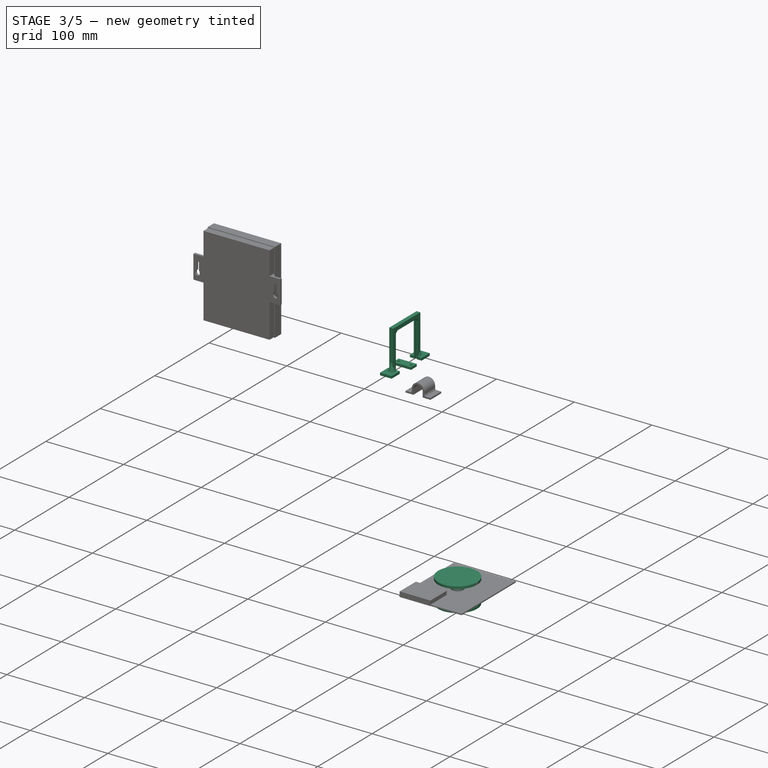
[diagram: stage 3 of 5 — iso view after this stage's code; geometry added in this stage tinted green]
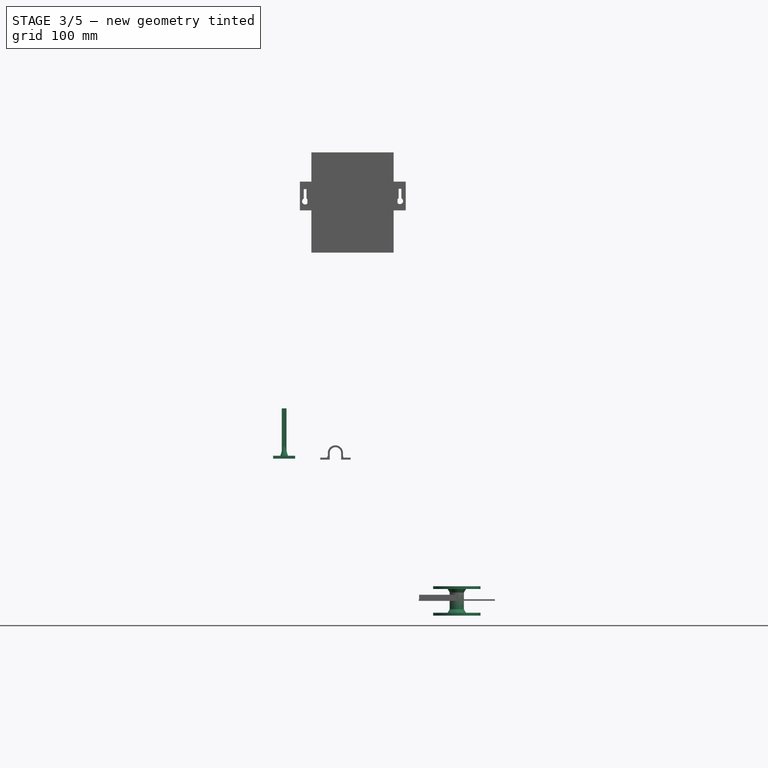
[diagram: stage 3 of 5 — front view after this stage's code; geometry added in this stage tinted green]
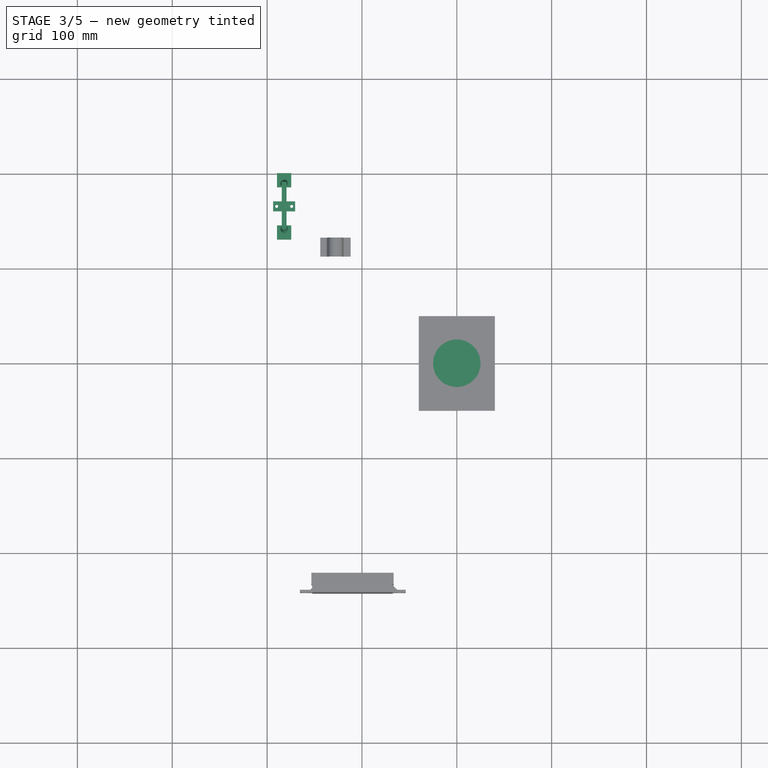
[diagram: stage 3 of 5 — top view after this stage's code; geometry added in this stage tinted green]
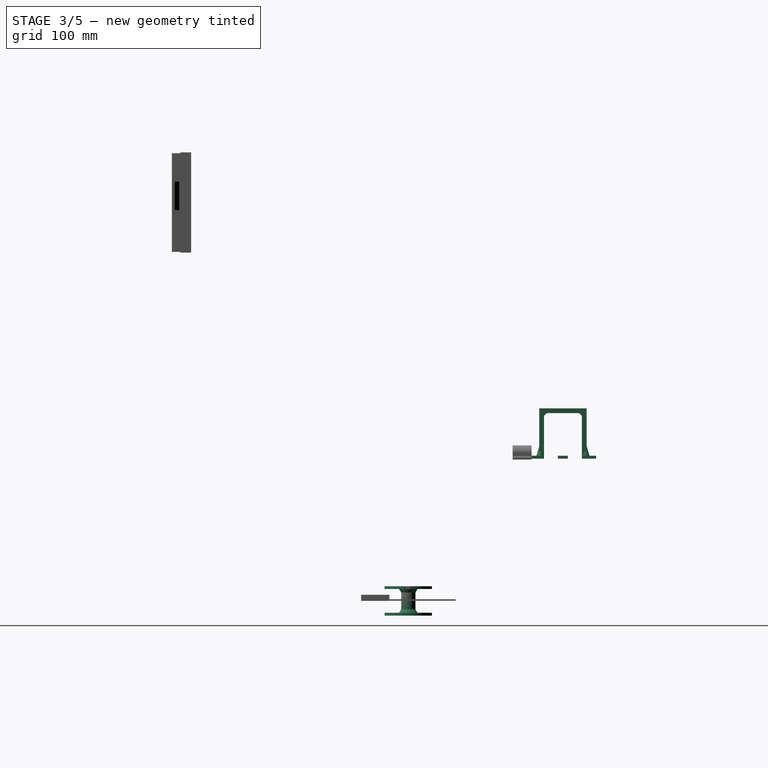
[diagram: stage 3 of 5 — right view after this stage's code; geometry added in this stage tinted green]
FEATURE [Sketcher::SketchObject] Sketch033
  Placement = pos=(0,0,-12.5) rot=(0,0,1;0rad)
  sketch-geometry (1):
    g0: Circle CenterX=0 CenterY=0 CenterZ=0 NormalX=0 NormalY=0 NormalZ=1 Radius=7.5
  constraints (2):
    c: Coincident(g0,g-1)
    c: Radius(g0) = 7.5
FEATURE [PartDesign::Pad] Pad027
  Length = 25
  Length2 = 100
  Placement = pos=(0,0,-12.5) rot=(0,0,1;0rad)
  Sketch = -> Sketch033
  Type = 0
FEATURE [Sketcher::SketchObject] Sketch034
  Placement = pos=(0,0,-12.5) rot=(0,0,1;0rad)
  sketch-geometry (1):
    g0: Circle CenterX=0 CenterY=0 CenterZ=0 NormalX=0 NormalY=0 NormalZ=1 Radius=25
  constraints (2):
    c: Coincident(g0,g-1)
    c: Radius(g0) = 25
FEATURE [PartDesign::Pad] Pad028
  Length = 3
  Length2 = 100
  Placement = pos=(0,0,-12.5) rot=(0,0,1;0rad)
  Reversed = true
  Sketch = -> Sketch034
  Type = 0
FEATURE [Sketcher::SketchObject] Sketch035
  Placement = pos=(0,0,12.5) rot=(0,0,1;0rad)
  sketch-geometry (1):
    g0: Circle CenterX=0 CenterY=0 CenterZ=0 NormalX=0 NormalY=0 NormalZ=1 Radius=25
  constraints (2):
    c: Coincident(g0,g-1)
    c: Radius(g0) = 25
FEATURE [PartDesign::Pad] Pad029
  Length = 3
  Length2 = 100
  Placement = pos=(0,0,12.5) rot=(0,0,1;0rad)
  Sketch = -> Sketch035
  Type = 0
FEATURE [Sketcher::SketchObject] Sketch036
  Placement = pos=(0,0,-15.5) rot=(0,0,1;0rad)
  sketch-geometry (1):
    g0: Circle CenterX=0 CenterY=0 CenterZ=0 NormalX=0 NormalY=0 NormalZ=1 Radius=5
  constraints (2):
    c: Coincident(g0,g-1)
    c: Radius(g0) = 5
FEATURE [PartDesign::Pad] Pad030
  Length = 29
  Length2 = 100
  Placement = pos=(0,0,-15.5) rot=(0,0,1;0rad)
  Sketch = -> Sketch036
  Type = 0
FEATURE [Part::MultiFuse] Fusion007
  Shapes = -> [Pad027,Pad028,Pad029]
FEATURE [Part::Cone] Cone002  label="Cône002"
  Angle = 360
  Height = 5
  Placement = pos=(0,0,8) rot=(0,0,1;0rad)
  Radius1 = 7
  Radius2 = 10
FEATURE [Part::Cone] Cone003  label="Cône003"
  Angle = 360
  Height = 5
  Placement = pos=(0,0,-13) rot=(0,0,1;0rad)
  Radius1 = 10
  Radius2 = 7
FEATURE [Part::MultiFuse] Fusion008
  Shapes = -> [Fusion007,Cone002,Cone003]
FEATURE [Part::Cut] Cut004
  Base = -> Fusion008
  Tool = -> Pad030
FEATURE [App::DocumentObjectGroup] Groupe008  label="support_bobine"
  Group = -> [Sketch006,Cut003,Cut005]
FEATURE [Sketcher::SketchObject] Sketch038
  sketch-geometry (4):
    g0: LineSegment StartX=-22.5 StartY=1 StartZ=0 EndX=22.5 EndY=1 EndZ=0
    g1: LineSegment StartX=22.5 StartY=1 StartZ=0 EndX=22.5 EndY=-1 EndZ=0
    g2: LineSegment StartX=22.5 StartY=-1 StartZ=0 EndX=-22.5 EndY=-1 EndZ=0
    g3: LineSegment StartX=-22.5 StartY=-1 StartZ=0 EndX=-22.5 EndY=1 EndZ=0
  constraints (13):
    c: Coincident(g0,g1)
    c: Coincident(g1,g2)
    c: Coincident(g2,g3)
    c: Coincident(g3,g0)
    c: Horizontal(g0)
    c: Horizontal(g2)
    c: Vertical(g1)
    c: Vertical(g3)
    c: Symmetric(g0,g0,g-2)
    c: Symmetric(g0,g1,g-1)
    c: DistanceY(g1,g1) = 2
    c: DistanceX(g2,g2) = 45
    c: DistanceX(g0,g-1) = 22.5
FEATURE [PartDesign::Pad] Pad032
  Length = 45
  Length2 = 100
  Sketch = -> Sketch038
  Type = 0
FEATURE [Sketcher::SketchObject] Sketch039
  sketch-geometry (4):
    g0: LineSegment StartX=-25 StartY=2.5 StartZ=0 EndX=-20 EndY=2.5 EndZ=0
    g1: LineSegment StartX=-20 StartY=2.5 StartZ=0 EndX=-20 EndY=-2.5 EndZ=0
    g2: LineSegment StartX=-20 StartY=-2.5 StartZ=0 EndX=-25 EndY=-2.5 EndZ=0
    g3: LineSegment StartX=-25 StartY=-2.5 StartZ=0 EndX=-25 EndY=2.5 EndZ=0
  constraints (12):
    c: Coincident(g0,g1)
    c: Coincident(g1,g2)
    c: Coincident(g2,g3)
    c: Coincident(g3,g0)
    c: Horizontal(g0)
    c: Horizontal(g2)
    c: Vertical(g1)
    c: Vertical(g3)
    c: DistanceX(g0,g0) = 5
    c: DistanceY(g3,g3) = 5
    c: DistanceX(g0,g-1) = 20
    c: Symmetric(g0,g2,g-1)
FEATURE [Sketcher::SketchObject] Sketch040
  sketch-geometry (4):
    g0: LineSegment StartX=20 StartY=2.5 StartZ=0 EndX=25 EndY=2.5 EndZ=0
    g1: LineSegment StartX=25 StartY=2.5 StartZ=0 EndX=25 EndY=-2.5 EndZ=0
    g2: LineSegment StartX=25 StartY=-2.5 StartZ=0 EndX=20 EndY=-2.5 EndZ=0
    g3: LineSegment StartX=20 StartY=-2.5 StartZ=0 EndX=20 EndY=2.5 EndZ=0
  constraints (12):
    c: Coincident(g0,g1)
    c: Coincident(g1,g2)
    c: Coincident(g2,g3)
    c: Coincident(g3,g0)
    c: Horizontal(g0)
    c: Horizontal(g2)
    c: Vertical(g1)
    c: Vertical(g3)
    c: Symmetric(g0,g1,g-1)
    c: DistanceX(g2,g2) = 5
    c: DistanceY(g1,g1) = 5
    c: DistanceX(g-1,g0) = 20
FEATURE [PartDesign::Pad] Pad033
  Length = 53
  Length2 = 100
  Sketch = -> Sketch039
  Type = 0
FEATURE [PartDesign::Pad] Pad034
  Length = 53
  Length2 = 100
  Sketch = -> Sketch040
  Type = 0
FEATURE [Sketcher::SketchObject] Sketch041
  Placement = pos=(-24,0,2) rot=(0.57735,0.57735,0.57735;2.0944rad)
  sketch-geometry (4):
    g0: LineSegment StartX=-2.5 StartY=50.9922 StartZ=0 EndX=2.5 EndY=50.9922 EndZ=0
    g1: LineSegment StartX=2.5 StartY=50.9922 StartZ=0 EndX=2.5 EndY=45.9922 EndZ=0
    g2: LineSegment StartX=2.5 StartY=45.9922 StartZ=0 EndX=-2.5 EndY=45.9922 EndZ=0
    g3: LineSegment StartX=-2.5 StartY=45.9922 StartZ=0 EndX=-2.5 EndY=50.9922 EndZ=0
  constraints (11):
    c: Coincident(g0,g1)
    c: Coincident(g1,g2)
    c: Coincident(g2,g3)
    c: Coincident(g3,g0)
    c: Horizontal(g0)
    c: Horizontal(g2)
    c: Vertical(g1)
    c: Vertical(g3)
    c: Symmetric(g0,g0,g-2)
    c: DistanceY(g3,g3) = 5
    c: DistanceX(g0,g0) = 5
FEATURE [PartDesign::Pad] Pad035
  Length = 48
  Length2 = 100
  Placement = pos=(-24,0,2) rot=(0.57735,0.57735,0.57735;2.0944rad)
  Sketch = -> Sketch041
  Type = 0
FEATURE [Sketcher::SketchObject] Sketch042
  sketch-geometry (4):
    g0: LineSegment StartX=-35 StartY=7.5 StartZ=0 EndX=-20 EndY=7.5 EndZ=0
    g1: LineSegment StartX=-20 StartY=7.5 StartZ=0 EndX=-20 EndY=-7.5 EndZ=0
    g2: LineSegment StartX=-20 StartY=-7.5 StartZ=0 EndX=-35 EndY=-7.5 EndZ=0
    g3: LineSegment StartX=-35 StartY=-7.5 StartZ=0 EndX=-35 EndY=7.5 EndZ=0
  constraints (12):
    c: Coincident(g0,g1)
    c: Coincident(g1,g2)
    c: Coincident(g2,g3)
    c: Coincident(g3,g0)
    c: Horizontal(g0)
    c: Horizontal(g2)
    c: Vertical(g1)
    c: Vertical(g3)
    c: DistanceX(g0,g0) = 15
    c: DistanceY(g3,g3) = 15
    c: DistanceX(g0,g-1) = 20
    c: Symmetric(g0,g2,g-1)
FEATURE [PartDesign::Pad] Pad036
  Length = 3
  Length2 = 100
  Sketch = -> Sketch042
  Type = 0
FEATURE [Sketcher::SketchObject] Sketch043
  sketch-geometry (4):
    g0: LineSegment StartX=20 StartY=7.5 StartZ=0 EndX=35 EndY=7.5 EndZ=0
    g1: LineSegment StartX=35 StartY=7.5 StartZ=0 EndX=35 EndY=-7.5 EndZ=0
    g2: LineSegment StartX=35 StartY=-7.5 StartZ=0 EndX=20 EndY=-7.5 EndZ=0
    g3: LineSegment StartX=20 StartY=-7.5 StartZ=0 EndX=20 EndY=7.5 EndZ=0
  constraints (12):
    c: Coincident(g0,g1)
    c: Coincident(g1,g2)
    c: Coincident(g2,g3)
    c: Coincident(g3,g0)
    c: Horizontal(g0)
    c: Horizontal(g2)
    c: Vertical(g1)
    c: Vertical(g3)
    c: Symmetric(g0,g1,g-1)
    c: DistanceX(g2,g2) = 15
    c: DistanceY(g1,g1) = 15
    c: DistanceX(g-1,g0) = 20
FEATURE [PartDesign::Pad] Pad037
  Length = 3
  Length2 = 100
  Sketch = -> Sketch043
  Type = 0
FEATURE [Sketcher::SketchObject] Sketch044
  Placement = pos=(0,0,3) rot=(0,0,1;0rad)
  sketch-geometry (4):
    g0: Circle CenterX=-30 CenterY=4 CenterZ=0 NormalX=0 NormalY=0 NormalZ=1 Radius=1.6
    g1: Circle CenterX=-30 CenterY=-4 CenterZ=0 NormalX=0 NormalY=0 NormalZ=1 Radius=1.6
    g2: Circle CenterX=30 CenterY=4 CenterZ=0 NormalX=0 NormalY=0 NormalZ=1 Radius=1.6
    g3: Circle CenterX=30 CenterY=-4 CenterZ=0 NormalX=0 NormalY=0 NormalZ=1 Radius=1.6
  constraints (9):
    c: Radius(g0) = 1.6
    c: Radius(g1) = 1.6
    c: Radius(g2) = 1.6
    c: Radius(g3) = 1.6
    c: Symmetric(g0,g2,g-2)
    c: Symmetric(g1,g3,g-2)
    c: Symmetric(g0,g1,g-1)
    c: DistanceX(g0,g2) = 60
    c: DistanceY(g1,g0) = 8
FEATURE [PartDesign::Pad] Pad038
  Length = 0.2
  Length2 = 100
  Placement = pos=(0,0,3) rot=(0,0,1;0rad)
  Reversed = true
  Sketch = -> Sketch044
  Type = 0
FEATURE [Part::MultiFuse] Fusion009
  Shapes = -> [Pad033,Pad034,Pad035,Pad036,Pad037]
FEATURE [Part::MultiFuse] Fusion010
  Shapes = -> [Fusion009,Cone004,Cone005]
FEATURE [Part::Cut] Cut006
  Base = -> Fusion010
  Tool = -> Pad032
FEATURE [Part::Cut] Cut007
  Base = -> Cut006
  Tool = -> Pad038
FEATURE [Part::MultiFuse] Fusion011
  Shapes = -> [Cut007,Pad039]
FEATURE [Part::MultiFuse] Fusion012
  Placement = pos=(-182,163,150) rot=(0,0,1;1.5708rad)
  Shapes = -> [Pad040,Fusion011]
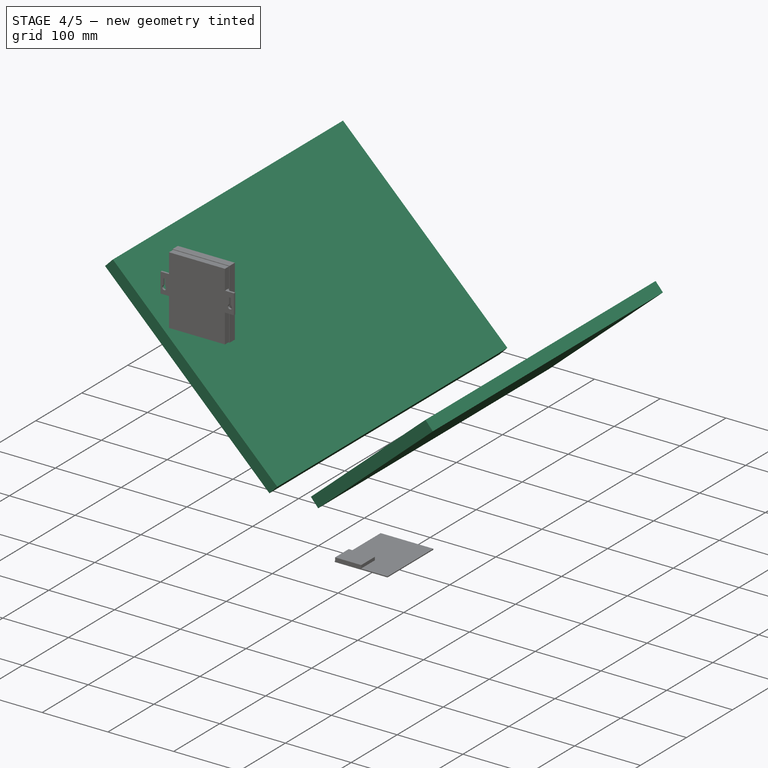
[diagram: stage 4 of 5 — iso view after this stage's code; geometry added in this stage tinted green]
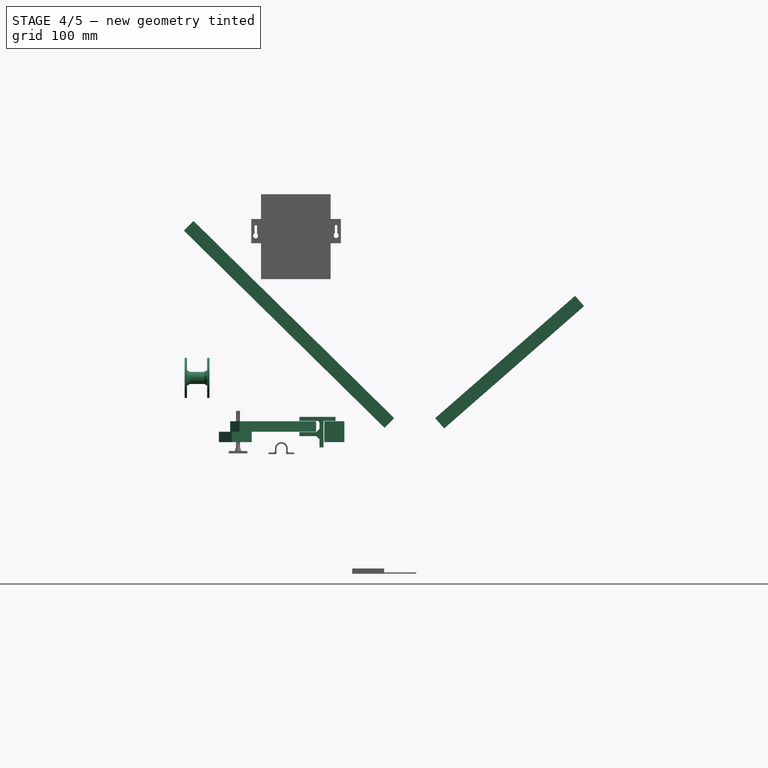
[diagram: stage 4 of 5 — front view after this stage's code; geometry added in this stage tinted green]
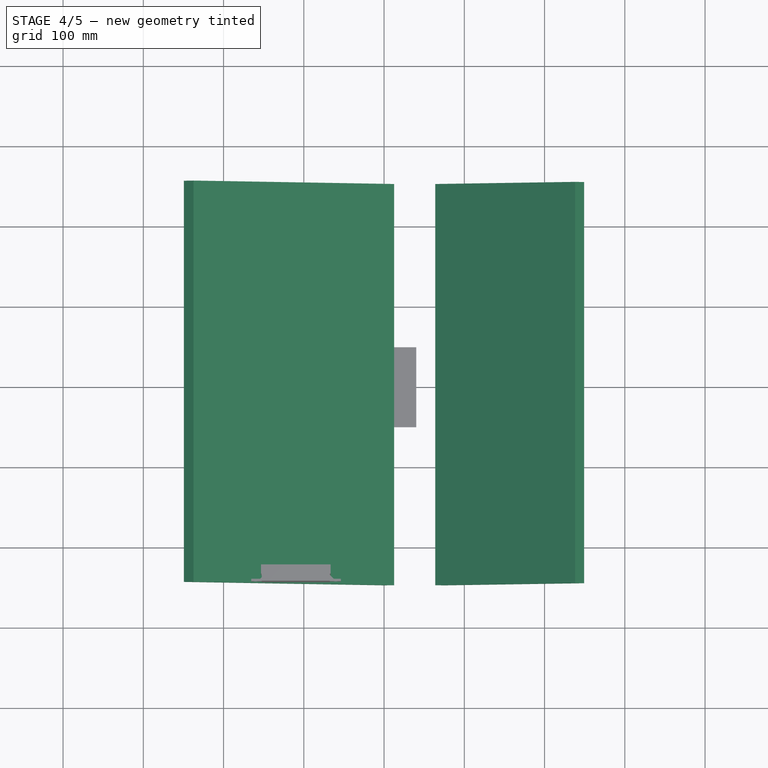
[diagram: stage 4 of 5 — top view after this stage's code; geometry added in this stage tinted green]
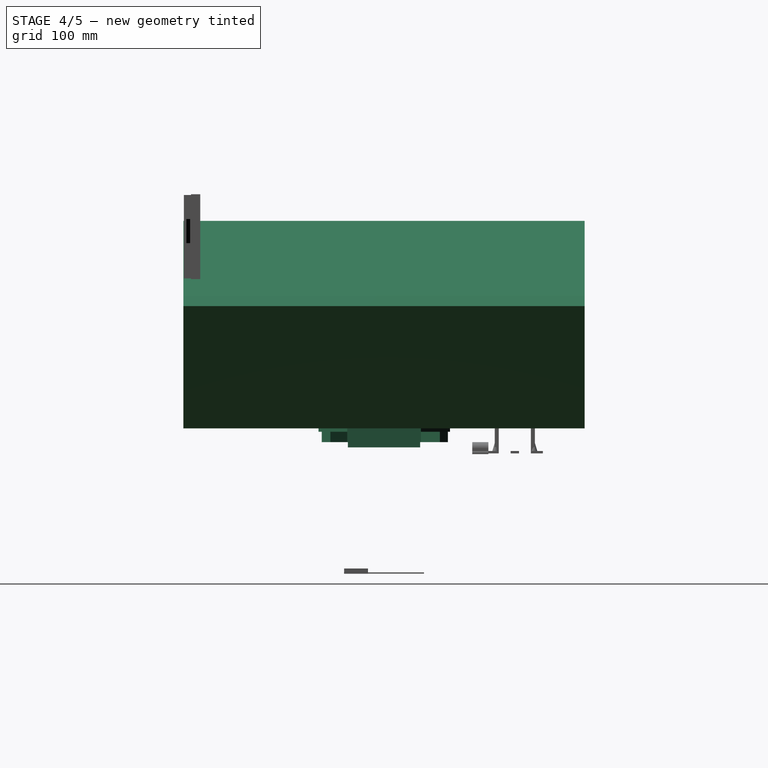
[diagram: stage 4 of 5 — right view after this stage's code; geometry added in this stage tinted green]
FEATURE [Sketcher::SketchObject] Sketch018
  Placement = pos=(40,0,164) rot=(0,0,1;0rad)
  sketch-geometry (4):
    g0: LineSegment StartX=-114.529 StartY=46.014 StartZ=0 EndX=-89.5293 EndY=46.014 EndZ=0
    g1: LineSegment StartX=-89.5293 StartY=46.014 StartZ=0 EndX=-89.5293 EndY=-45.8099 EndZ=0
    g2: LineSegment StartX=-89.5293 StartY=-45.8099 StartZ=0 EndX=-114.529 EndY=-45.8099 EndZ=0
    g3: LineSegment StartX=-114.529 StartY=-45.8099 StartZ=0 EndX=-114.529 EndY=46.014 EndZ=0
  constraints (9):
    c: Coincident(g0,g1)
    c: Coincident(g1,g2)
    c: Coincident(g2,g3)
    c: Coincident(g3,g0)
    c: Horizontal(g0)
    c: Horizontal(g2)
    c: Vertical(g1)
    c: Vertical(g3)
    c: DistanceX(g2,g2) = 25
FEATURE [PartDesign::Pad] Pad017
  Length = 26
  Length2 = 100
  Placement = pos=(40,0,164) rot=(0,0,1;0rad)
  Sketch = -> Sketch018
  Type = 0
FEATURE [App::DocumentObjectGroup] Groupe004  label="piston"
  Group = -> [Fusion003]
FEATURE [Sketcher::SketchObject] Sketch019
  Placement = pos=(-78,-45,174) rot=(0,0.707107,0.707107;3.14159rad)
  sketch-geometry (19):
    g0: LineSegment StartX=27.5 StartY=2.5 StartZ=0 EndX=27.5 EndY=-2.5 EndZ=0
    g1: LineSegment StartX=27.5 StartY=2.5 StartZ=0 EndX=6.5 EndY=2.5 EndZ=0
    g2: LineSegment StartX=-2.5 StartY=-15.1281 StartZ=0 EndX=-2.5 EndY=16.5 EndZ=0
    g3: GeomPoint [constr] X=2.5 Y=6.5 Z=0
    g4: LineSegment StartX=6.5 StartY=2.5 StartZ=0 EndX=2.5 EndY=6.5 EndZ=0
    g5: LineSegment StartX=-2.5 StartY=16.5 StartZ=0 EndX=-17.5 EndY=16.5 EndZ=0
    g6: LineSegment StartX=-17.5 StartY=16.5 StartZ=0 EndX=-17.5 EndY=21.5 EndZ=0
    g7: LineSegment StartX=2.5 StartY=-16.5 StartZ=0 EndX=-2.5 EndY=-16.5 EndZ=0
    g8: LineSegment StartX=-2.5 StartY=-16.5 StartZ=0 EndX=-2.5 EndY=-15.1281 EndZ=0
    g9: LineSegment StartX=27.5 StartY=-2.5 StartZ=0 EndX=6.5 EndY=-2.5 EndZ=0
    g10: GeomPoint [constr] X=2.5 Y=-6.5 Z=0
    g11: LineSegment StartX=2.5 StartY=-6.5 StartZ=0 EndX=2.5 EndY=-16.5 EndZ=0
    g12: LineSegment StartX=2.5 StartY=-6.5 StartZ=0 EndX=6.5 EndY=-2.5 EndZ=0
    g13: LineSegment StartX=4.5 StartY=16.5 StartZ=0 EndX=27.5 EndY=16.5 EndZ=0
    g14: LineSegment StartX=27.5 StartY=16.5 StartZ=0 EndX=27.5 EndY=21.5 EndZ=0
    g15: LineSegment StartX=27.5 StartY=21.5 StartZ=0 EndX=-17.5 EndY=21.5 EndZ=0
    g16: LineSegment StartX=2.5 StartY=6.5 StartZ=0 EndX=2.5 EndY=14.5 EndZ=0
    g17: GeomPoint [constr] X=2.5 Y=14.5 Z=0
    g18: LineSegment StartX=2.5 StartY=14.5 StartZ=0 EndX=4.5 EndY=16.5 EndZ=0
  constraints (50):
    c: Vertical(g0)
    c: Symmetric(g0,g0,g-1)
    c: Coincident(g1,g0)
    c: Horizontal(g1)
    c: DistanceY(g1,g3) = 4
    c: DistanceX(g3,g1) = 4
    c: Coincident(g4,g1)
    c: Coincident(g4,g3)
    c: Coincident(g5,g2)
    c: Horizontal(g5)
    c: Coincident(g6,g5)
    c: Vertical(g6)
    c: Horizontal(g7)
    c: Coincident(g8,g7)
    c: Coincident(g8,g2)
    c: Vertical(g8)
    c: Coincident(g9,g0)
    c: Horizontal(g9)
    c: DistanceY(g10,g9) = 4
    c: DistanceX(g10,g9) = 4
    c: Coincident(g11,g10)
    c: Vertical(g11)
    c: Coincident(g11,g7)
    c: Coincident(g12,g10)
    c: Coincident(g12,g9)
    c: DistanceY(g0,g0) = 5
    c: Horizontal(g13)
    c: Coincident(g14,g13)
    c: Vertical(g14)
    c: Coincident(g15,g14)
    c: Horizontal(g15)
    c: Coincident(g15,g6)
    c: DistanceY(g0,g13) = 14
    c: Coincident(g16,g3)
    c: Vertical(g16)
    c: DistanceY(g14,g14) = 5
    c: Symmetric(g1,g9,g-1)
    c: DistanceX(g10,g0) = 25
    c: DistanceX(g-1,g10) = 2.5
    c: DistanceY(g11,g11) = 10
    c: Symmetric(g7,g7,g-2)
    c: DistanceX(g17,g13) = 2
    c: DistanceY(g17,g13) = 2
    c: Coincident(g17,g16)
    c: Coincident(g18,g16)
    c: Coincident(g18,g13)
    c: DistanceX(g16,g14) = 25
    c: DistanceY(g6,g6) = 5
    c: DistanceX(g5,g5) = 15
    c: Parallel(g2,g-2)
FEATURE [PartDesign::Pad] Pad018
  Length = 90
  Length2 = 100
  Placement = pos=(-78,-45,174) rot=(0,0.707107,0.707107;3.14159rad)
  Sketch = -> Sketch019
  Type = 0
FEATURE [Sketcher::SketchObject] Sketch020
  Placement = pos=(-80.5,-45,174) rot=(0,-1,0;1.5708rad)
  Support = -> Pad018 [Face6]
  sketch-geometry (5):
    g0: Circle CenterX=-11.1736 CenterY=83.0659 CenterZ=0 NormalX=0 NormalY=0 NormalZ=1 Radius=1.5
    g1: Circle CenterX=-11.1736 CenterY=64.5731 CenterZ=0 NormalX=0 NormalY=0 NormalZ=1 Radius=1.5
    g2: Circle CenterX=-11.1736 CenterY=44.595 CenterZ=0 NormalX=0 NormalY=0 NormalZ=1 Radius=1.5
    g3: Circle CenterX=-11.1736 CenterY=25.0582 CenterZ=0 NormalX=0 NormalY=0 NormalZ=1 Radius=1.5
    g4: Circle CenterX=-11.1736 CenterY=6.85449 CenterZ=0 NormalX=0 NormalY=0 NormalZ=1 Radius=1.5
  constraints (2):
    c: Radius(g0) = 1.5
    c: Equal(g0, g1-g4) x4
FEATURE [PartDesign::Pocket] Pocket
  Length = 0.2
  Placement = pos=(-78,-45,174) rot=(0,0.707107,0.707107;3.14159rad)
  Sketch = -> Sketch020
  Type = 0
FEATURE [Sketcher::SketchObject] Sketch021
  Placement = pos=(-78,-45,195.5) rot=(0,0,1;0rad)
  Support = -> Pocket [Face16]
  sketch-geometry (5):
    g0: Circle CenterX=8.46537 CenterY=84.0742 CenterZ=0 NormalX=0 NormalY=0 NormalZ=1 Radius=1.5
    g1: Circle CenterX=8.46537 CenterY=64.0832 CenterZ=0 NormalX=0 NormalY=0 NormalZ=1 Radius=1.5
    g2: Circle CenterX=8.46537 CenterY=44.7166 CenterZ=0 NormalX=0 NormalY=0 NormalZ=1 Radius=1.5
    g3: Circle CenterX=8.46537 CenterY=25.2428 CenterZ=0 NormalX=0 NormalY=0 NormalZ=1 Radius=1.5
    g4: Circle CenterX=8.46537 CenterY=5.6012 CenterZ=0 NormalX=0 NormalY=0 NormalZ=1 Radius=1.5
  constraints (2):
    c: Radius(g0) = 1.5
    c: Equal(g0, g1-g4) x4
FEATURE [PartDesign::Pocket] Pocket001
  Length = 0.2
  Placement = pos=(-78,-45,174) rot=(0,0.707107,0.707107;3.14159rad)
  Sketch = -> Sketch021
  Type = 0
FEATURE [Sketcher::SketchObject] Sketch022
  Placement = pos=(-78,-45,171.5) rot=(0,1,0;3.14159rad)
  Support = -> Pocket001 [Face8]
  sketch-geometry (4):
    g0: GeomPoint [constr] X=17.4967 Y=15.6547 Z=0
    g1: GeomPoint [constr] X=17.4967 Y=74.1548 Z=0
    g2: Circle CenterX=17.4967 CenterY=74.1548 CenterZ=0 NormalX=0 NormalY=0 NormalZ=1 Radius=2
    g3: Circle CenterX=17.4967 CenterY=15.6547 CenterZ=0 NormalX=0 NormalY=0 NormalZ=1 Radius=2
  constraints (5):
    c: DistanceY(g0,g1) = 58.5
    c: Radius(g2) = 2
    c: Equal(g2,g3)
    c: Coincident(g2,g1)
    c: Coincident(g3,g0)
FEATURE [PartDesign::Pocket] Pocket002
  Length = 0.2
  Placement = pos=(-78,-45,174) rot=(0,0.707107,0.707107;3.14159rad)
  Sketch = -> Sketch022
  Type = 0
FEATURE [Sketcher::SketchObject] Sketch023
  Placement = pos=(-78,-45,195.5) rot=(0,0,1;0rad)
  Support = -> Pocket002 [Face16]
  sketch-geometry (2):
    g0: Circle CenterX=-17.4862 CenterY=74.146 CenterZ=0 NormalX=0 NormalY=0 NormalZ=1 Radius=2
    g1: Circle CenterX=-17.4943 CenterY=15.653 CenterZ=0 NormalX=0 NormalY=0 NormalZ=1 Radius=2
  constraints (2):
    c: Radius(g0) = 2
    c: Equal(g0,g1)
FEATURE [PartDesign::Pocket] Pocket003
  Length = 0.2
  Placement = pos=(-78,-45,174) rot=(0,0.707107,0.707107;3.14159rad)
  Sketch = -> Sketch023
  Type = 0
FEATURE [App::DocumentObjectGroup] Groupe005  label="support_bielle"
  Group = -> [Pad018,Pocket,Pocket001,Pocket002,Pocket003]
FEATURE [Sketcher::SketchObject] Sketch024
  Placement = pos=(40,0,177) rot=(0,0,1;0rad)
  sketch-geometry (12):
    g0: LineSegment StartX=-135.061 StartY=-15.1175 StartZ=0 EndX=-230.522 EndY=-58.8467 EndZ=0
    g1: LineSegment StartX=-124.649 StartY=-37.8462 StartZ=0 EndX=-220.11 EndY=-81.5754 EndZ=0
    g2: LineSegment StartX=-220.11 StartY=-81.5754 StartZ=0 EndX=-230.522 EndY=-58.8467 EndZ=0
    g3: LineSegment StartX=-135.061 StartY=-15.1175 StartZ=0 EndX=-124.649 EndY=-37.8462 EndZ=0
    g4: LineSegment StartX=-125.95 StartY=38.7589 StartZ=0 EndX=-136.294 EndY=15.9992 EndZ=0
    g5: LineSegment StartX=-136.294 StartY=15.9992 StartZ=0 EndX=-231.885 EndY=59.4434 EndZ=0
    g6: LineSegment StartX=-231.885 StartY=59.4434 StartZ=0 EndX=-221.541 EndY=82.2031 EndZ=0
    g7: LineSegment StartX=-221.541 StartY=82.2031 StartZ=0 EndX=-125.95 EndY=38.7589 EndZ=0
    g8: Circle CenterX=-135.89 CenterY=29.1584 CenterZ=0 NormalX=0 NormalY=0 NormalZ=1 Radius=2
    g9: Circle CenterX=-220.202 CenterY=67.1125 CenterZ=0 NormalX=0 NormalY=0 NormalZ=1 Radius=2
    g10: Circle CenterX=-135.89 CenterY=-29.1584 CenterZ=0 NormalX=0 NormalY=0 NormalZ=1 Radius=2
    g11: Circle CenterX=-220.202 CenterY=-67.1125 CenterZ=0 NormalX=0 NormalY=0 NormalZ=1 Radius=2
  constraints (24):
    c: Coincident(g2,g1)
    c: Coincident(g2,g0)
    c: Coincident(g3,g0)
    c: Coincident(g3,g1)
    c: Parallel(g0,g1)
    c: Parallel(g3,g2)
    c: Angle(g2,g0) = 1.5708
    c: Distance(g2) = 25
    c: Distance(g0) = 105
    c: Coincident(g5,g4)
    c: Coincident(g6,g5)
    c: Coincident(g7,g6)
    c: Coincident(g7,g4)
    c: Parallel(g7,g5)
    c: Parallel(g6,g4)
    c: Angle(g6,g7) = 1.5708
    c: Distance(g5) = 105
    c: Distance(g6) = 25
    c: Radius(g8) = 2
    c: Radius(g9) = 2
    c: Radius(g10) = 2
    c: Radius(g11) = 2
    c: Symmetric(g8,g10,g-1)
    c: Symmetric(g9,g11,g-1)
FEATURE [Sketcher::SketchObject] Sketch025
  Placement = pos=(40,0,177) rot=(0,0,1;0rad)
  sketch-geometry (12):
    g0: LineSegment StartX=-227.887 StartY=79.5554 StartZ=0 EndX=-204.837 EndY=69.607 EndZ=0
    g1: LineSegment StartX=-204.837 StartY=69.607 StartZ=0 EndX=-223.216 EndY=32.6831 EndZ=0
    g2: LineSegment StartX=-223.216 StartY=32.6831 StartZ=0 EndX=-245.68 EndY=43.8911 EndZ=0
    g3: LineSegment StartX=-245.68 StartY=43.8911 StartZ=0 EndX=-227.887 EndY=79.5554 EndZ=0
    g4: LineSegment StartX=-245.929 StartY=-43.4088 StartZ=0 EndX=-223.472 EndY=-32.7663 EndZ=0
    g5: LineSegment StartX=-223.472 StartY=-32.7663 StartZ=0 EndX=-207.319 EndY=-66.8516 EndZ=0
    g6: LineSegment StartX=-207.319 StartY=-66.8516 StartZ=0 EndX=-229.776 EndY=-77.4941 EndZ=0
    g7: LineSegment StartX=-229.776 StartY=-77.4941 StartZ=0 EndX=-245.929 EndY=-43.4088 EndZ=0
    g8: Circle CenterX=-232.248 CenterY=45.1476 CenterZ=0 NormalX=0 NormalY=0 NormalZ=1 Radius=2
    g9: Circle CenterX=-220.132 CenterY=67.0168 CenterZ=0 NormalX=0 NormalY=0 NormalZ=1 Radius=2
    g10: Circle CenterX=-232.563 CenterY=-43.7848 CenterZ=0 NormalX=0 NormalY=0 NormalZ=1 Radius=2
    g11: Circle CenterX=-220.546 CenterY=-67.1743 CenterZ=0 NormalX=0 NormalY=0 NormalZ=1 Radius=2
  constraints (17):
    c: Coincident(g1,g0)
    c: Coincident(g2,g1)
    c: Coincident(g3,g2)
    c: Coincident(g3,g0)
    c: Coincident(g5,g4)
    c: Coincident(g6,g5)
    c: Coincident(g7,g6)
    c: Coincident(g7,g4)
    c: Radius(g8) = 2
    c: Radius(g9) = 2
    c: Angle(g2,g3) = 1.5708
    c: Equal(g0,g2)
    c: Radius(g10) = 2
    c: Radius(g11) = 2
    c: Equal(g7,g5)
    c: Equal(g4,g6)
    c: Angle(g5,g6) = 1.5708
FEATURE [PartDesign::Pad] Pad019
  Length = 13
  Length2 = 100
  Placement = pos=(40,0,177) rot=(0,0,1;0rad)
  Sketch = -> Sketch024
  Type = 0
FEATURE [PartDesign::Pad] Pad020
  Length = 13
  Length2 = 100
  Placement = pos=(40,0,177) rot=(0,0,1;0rad)
  Reversed = true
  Sketch = -> Sketch025
  Type = 0
FEATURE [Part::MultiFuse] Fusion004
  Shapes = -> [Pad019,Pad020]
FEATURE [App::DocumentObjectGroup] Groupe006  label="bielle"
  Group = -> [Fusion004]
FEATURE [Sketcher::SketchObject] Sketch026
  Placement = pos=(0,-250,0) rot=(1,0,0;1.5708rad)
  sketch-geometry (8):
    g0: LineSegment StartX=-237.482 StartY=439.622 StartZ=0 EndX=12.5509 EndY=193.959 EndZ=0
    g1: LineSegment StartX=12.5509 StartY=193.959 StartZ=0 EndX=0.636468 EndY=181.833 EndZ=0
    g2: LineSegment StartX=0.636468 StartY=181.833 StartZ=0 EndX=-249.396 EndY=427.496 EndZ=0
    g3: LineSegment StartX=-249.396 StartY=427.496 StartZ=0 EndX=-237.482 EndY=439.622 EndZ=0
    g4: LineSegment StartX=63.698 StartY=193.882 StartZ=0 EndX=238.016 EndY=346.282 EndZ=0
    g5: LineSegment StartX=238.016 StartY=346.282 StartZ=0 EndX=249.205 EndY=333.483 EndZ=0
    g6: LineSegment StartX=249.205 StartY=333.483 StartZ=0 EndX=74.8872 EndY=181.084 EndZ=0
    g7: LineSegment StartX=74.8872 StartY=181.084 StartZ=0 EndX=63.698 EndY=193.882 EndZ=0
  constraints (16):
    c: Coincident(g1,g0)
    c: Coincident(g2,g1)
    c: Coincident(g3,g2)
    c: Coincident(g3,g0)
    c: Equal(g0,g2)
    c: Equal(g3,g1)
    c: Angle(g3,g0) = 1.5708
    c: Distance(g3) = 17
    c: Coincident(g5,g4)
    c: Coincident(g6,g5)
    c: Coincident(g7,g6)
    c: Coincident(g7,g4)
    c: Equal(g6,g4)
    c: Equal(g7,g5)
    c: Angle(g4,g5) = 1.5708
    c: Distance(g5) = 17
FEATURE [PartDesign::Pad] Pad021
  Length = 500
  Length2 = 100
  Placement = pos=(0,-250,0) rot=(1,0,0;1.5708rad)
  Reversed = true
  Sketch = -> Sketch026
  Type = 0
FEATURE [App::DocumentObjectGroup] Groupe007  label="cuve"
  Group = -> [Pad021]
FEATURE [Sketcher::SketchObject] Sketch027
  Placement = pos=(0,0,-12.5) rot=(0,0,1;0rad)
  sketch-geometry (1):
    g0: Circle CenterX=0 CenterY=0 CenterZ=0 NormalX=0 NormalY=0 NormalZ=1 Radius=7.5
  constraints (2):
    c: Coincident(g0,g-1)
    c: Radius(g0) = 7.5
FEATURE [PartDesign::Pad] Pad022
  Length = 25
  Length2 = 100
  Placement = pos=(0,0,-12.5) rot=(0,0,1;0rad)
  Sketch = -> Sketch027
  Type = 0
FEATURE [Sketcher::SketchObject] Sketch028
  Placement = pos=(0,0,-12.5) rot=(0,0,1;0rad)
  sketch-geometry (1):
    g0: Circle CenterX=0 CenterY=0 CenterZ=0 NormalX=0 NormalY=0 NormalZ=1 Radius=25
  constraints (2):
    c: Coincident(g0,g-1)
    c: Radius(g0) = 25
FEATURE [PartDesign::Pad] Pad023
  Length = 3
  Length2 = 100
  Placement = pos=(0,0,-12.5) rot=(0,0,1;0rad)
  Reversed = true
  Sketch = -> Sketch028
  Type = 0
FEATURE [Sketcher::SketchObject] Sketch029
  Placement = pos=(0,0,12.5) rot=(0,0,1;0rad)
  sketch-geometry (1):
    g0: Circle CenterX=0 CenterY=0 CenterZ=0 NormalX=0 NormalY=0 NormalZ=1 Radius=25
  constraints (2):
    c: Coincident(g0,g-1)
    c: Radius(g0) = 25
FEATURE [PartDesign::Pad] Pad024
  Length = 3
  Length2 = 100
  Placement = pos=(0,0,12.5) rot=(0,0,1;0rad)
  Sketch = -> Sketch029
  Type = 0
FEATURE [Sketcher::SketchObject] Sketch030
  Placement = pos=(0,0,-15.5) rot=(0,0,1;0rad)
  sketch-geometry (1):
    g0: Circle CenterX=0 CenterY=0 CenterZ=0 NormalX=0 NormalY=0 NormalZ=1 Radius=5
  constraints (2):
    c: Coincident(g0,g-1)
    c: Radius(g0) = 5
FEATURE [PartDesign::Pad] Pad025
  Length = 29
  Length2 = 100
  Placement = pos=(0,0,-15.5) rot=(0,0,1;0rad)
  Sketch = -> Sketch030
  Type = 0
FEATURE [Part::MultiFuse] Fusion005
  Shapes = -> [Pad022,Pad023,Pad024]
FEATURE [Sketcher::SketchObject] Sketch031
  Placement = pos=(0,0,15.2) rot=(0,0,1;0rad)
  sketch-geometry (2):
    g0: Circle CenterX=2.52181 CenterY=0 CenterZ=0 NormalX=0 NormalY=0 NormalZ=1 Radius=1.6
    g1: Circle CenterX=-2.52181 CenterY=0 CenterZ=0 NormalX=0 NormalY=0 NormalZ=1 Radius=1.6
  constraints (4):
    c: Radius(g0) = 1.6
    c: Radius(g1) = 1.6
    c: Symmetric(g0,g1,g-2)
    c: PointOnObject(g1,g-1)
FEATURE [PartDesign::Pad] Pad006
  Length = 25
  Length2 = 100
  Placement = pos=(0,0,15.2) rot=(0,0,1;0rad)
  Sketch = -> Sketch031
  Type = 0
FEATURE [Sketcher::SketchObject] Sketch006
FEATURE [Part::Cone] Cone  label="Cône"
  Angle = 360
  Height = 5
  Placement = pos=(0,0,8) rot=(0,0,1;0rad)
  Radius1 = 7
  Radius2 = 10
FEATURE [Part::Cone] Cone001  label="Cône001"
  Angle = 360
  Height = 5
  Placement = pos=(0,0,-13) rot=(0,0,1;0rad)
  Radius1 = 10
  Radius2 = 7
FEATURE [Part::MultiFuse] Fusion006
  Shapes = -> [Fusion005,Cone,Cone001]
FEATURE [Part::Cut] Cut002
  Base = -> Fusion006
  Tool = -> Pad025
FEATURE [Part::Cut] Cut003
  Base = -> Cut002
  Placement = pos=(-233,131,244) rot=(0,1,0;1.5708rad)
  Tool = -> Pad006
FEATURE [Sketcher::SketchObject] Sketch037
  Placement = pos=(0,0,15.2) rot=(0,0,1;0rad)
  sketch-geometry (2):
    g0: Circle CenterX=2.52181 CenterY=0 CenterZ=0 NormalX=0 NormalY=0 NormalZ=1 Radius=1.6
    g1: Circle CenterX=-2.52181 CenterY=0 CenterZ=0 NormalX=0 NormalY=0 NormalZ=1 Radius=1.6
  constraints (4):
    c: Radius(g0) = 1.6
    c: Radius(g1) = 1.6
    c: Symmetric(g0,g1,g-2)
    c: PointOnObject(g1,g-1)
FEATURE [PartDesign::Pad] Pad031
  Length = 25
  Length2 = 100
  Placement = pos=(0,0,15.2) rot=(0,0,1;0rad)
  Sketch = -> Sketch037
  Type = 0
FEATURE [Part::Cut] Cut005
  Base = -> Cut004
  Placement = pos=(-233,202,244) rot=(0,1,0;1.5708rad)
  Tool = -> Pad031
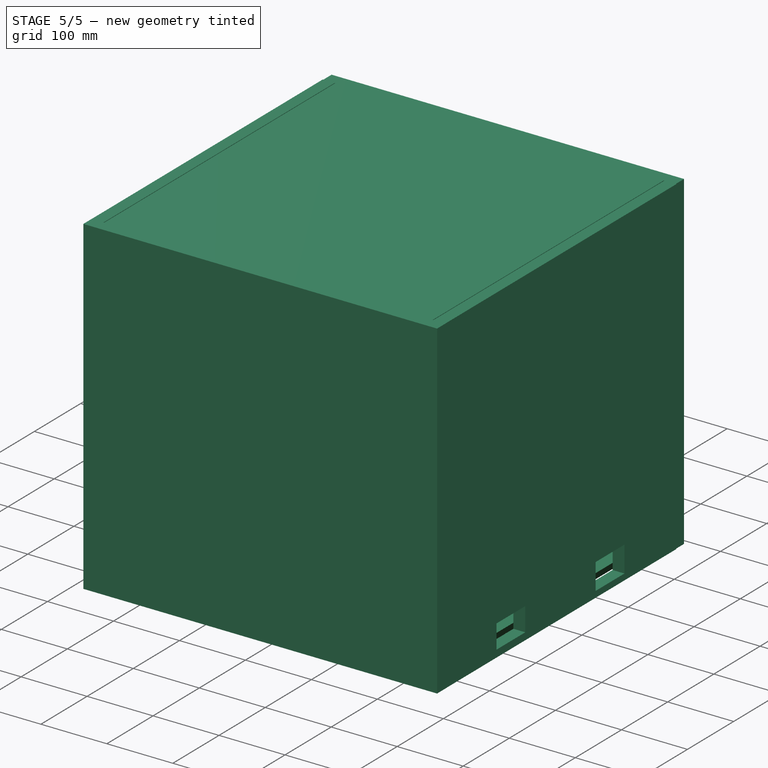
[diagram: stage 5 of 5 — iso view after this stage's code; geometry added in this stage tinted green]
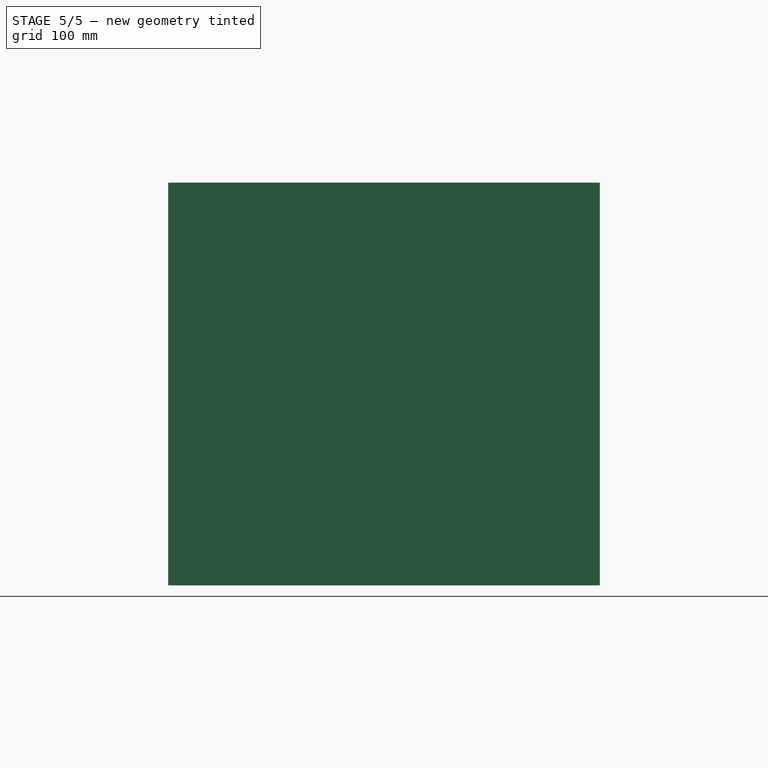
[diagram: stage 5 of 5 — front view after this stage's code; geometry added in this stage tinted green]
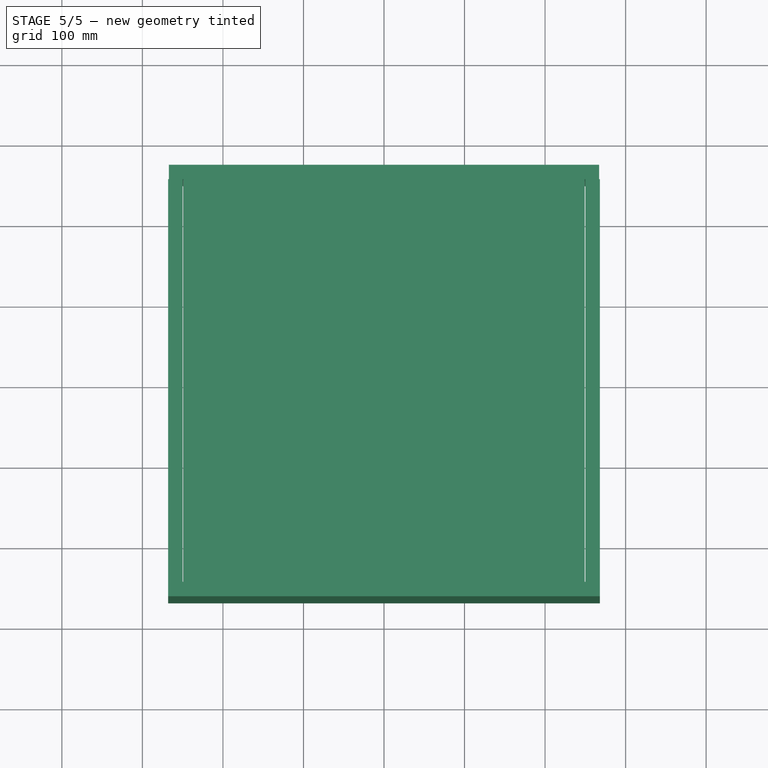
[diagram: stage 5 of 5 — top view after this stage's code; geometry added in this stage tinted green]
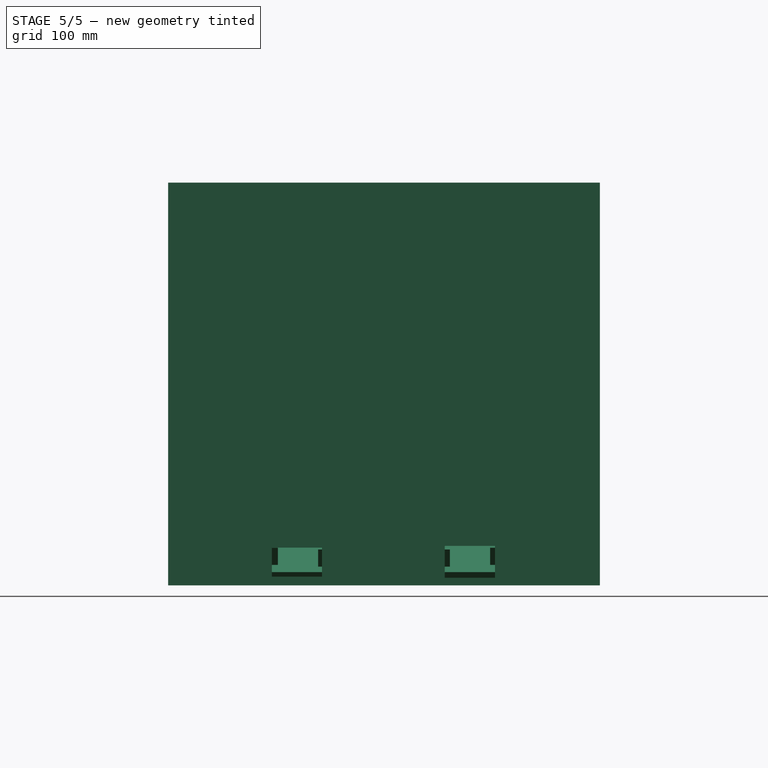
[diagram: stage 5 of 5 — right view after this stage's code; geometry added in this stage tinted green]
FEATURE [Sketcher::SketchObject] Sketch001
  Placement = pos=(250,0,0) rot=(0.57735,0.57735,0.57735;2.0944rad)
  sketch-geometry (4):
    g0: LineSegment StartX=-250 StartY=500 StartZ=0 EndX=250 EndY=500 EndZ=0
    g1: LineSegment StartX=250 StartY=500 StartZ=0 EndX=250 EndY=0 EndZ=0
    g2: LineSegment StartX=250 StartY=0 StartZ=0 EndX=-250 EndY=0 EndZ=0
    g3: LineSegment StartX=-250 StartY=0 StartZ=0 EndX=-250 EndY=500 EndZ=0
  constraints (12):
    c: Coincident(g0,g1)
    c: Coincident(g1,g2)
    c: Coincident(g2,g3)
    c: Coincident(g3,g0)
    c: Horizontal(g0)
    c: Horizontal(g2)
    c: Vertical(g1)
    c: Vertical(g3)
    c: Symmetric(g0,g0,g-2)
    c: DistanceX(g0,g0) = 500
    c: DistanceY(g3,g3) = 500
    c: PointOnObject(g1,g-1)
FEATURE [PartDesign::Pad] Pad001
  Length = 18
  Length2 = 100
  Placement = pos=(250,0,0) rot=(0.57735,0.57735,0.57735;2.0944rad)
  Sketch = -> Sketch001
  Type = 0
FEATURE [Sketcher::SketchObject] Sketch002
  Placement = pos=(-250,0,0) rot=(0.57735,0.57735,0.57735;2.0944rad)
  sketch-geometry (4):
    g0: LineSegment StartX=-250 StartY=500 StartZ=0 EndX=250 EndY=500 EndZ=0
    g1: LineSegment StartX=250 StartY=500 StartZ=0 EndX=250 EndY=0 EndZ=0
    g2: LineSegment StartX=250 StartY=0 StartZ=0 EndX=-250 EndY=0 EndZ=0
    g3: LineSegment StartX=-250 StartY=0 StartZ=0 EndX=-250 EndY=500 EndZ=0
  constraints (12):
    c: Coincident(g0,g1)
    c: Coincident(g1,g2)
    c: Coincident(g2,g3)
    c: Coincident(g3,g0)
    c: Horizontal(g0)
    c: Horizontal(g2)
    c: Vertical(g1)
    c: Vertical(g3)
    c: Symmetric(g0,g0,g-2)
    c: DistanceX(g0,g0) = 500
    c: DistanceY(g-1,g0) = 500
    c: PointOnObject(g2,g-1)
FEATURE [PartDesign::Pad] Pad002
  Length = 18
  Length2 = 100
  Placement = pos=(-250,0,0) rot=(0.57735,0.57735,0.57735;2.0944rad)
  Reversed = true
  Sketch = -> Sketch002
  Type = 0
FEATURE [Sketcher::SketchObject] Sketch003
  Placement = pos=(0,250,0) rot=(1,0,0;1.5708rad)
  sketch-geometry (4):
    g0: LineSegment StartX=-267.093 StartY=500 StartZ=0 EndX=267.093 EndY=500 EndZ=0
    g1: LineSegment StartX=267.093 StartY=500 StartZ=0 EndX=267.093 EndY=0 EndZ=0
    g2: LineSegment StartX=267.093 StartY=0 StartZ=0 EndX=-267.093 EndY=0 EndZ=0
    g3: LineSegment StartX=-267.093 StartY=0 StartZ=0 EndX=-267.093 EndY=500 EndZ=0
  constraints (11):
    c: Coincident(g0,g1)
    c: Coincident(g1,g2)
    c: Coincident(g2,g3)
    c: Coincident(g3,g0)
    c: Horizontal(g0)
    c: Horizontal(g2)
    c: Vertical(g1)
    c: Vertical(g3)
    c: Symmetric(g2,g1,g-2)
    c: DistanceY(g1,g1) = 500
    c: PointOnObject(g2,g-1)
FEATURE [Sketcher::SketchObject] Sketch004
  Placement = pos=(0,-250,0) rot=(1,0,0;1.5708rad)
  sketch-geometry (4):
    g0: LineSegment StartX=-268.125 StartY=500 StartZ=0 EndX=268.125 EndY=500 EndZ=0
    g1: LineSegment StartX=268.125 StartY=500 StartZ=0 EndX=268.125 EndY=0 EndZ=0
    g2: LineSegment StartX=268.125 StartY=0 StartZ=0 EndX=-268.125 EndY=0 EndZ=0
    g3: LineSegment StartX=-268.125 StartY=0 StartZ=0 EndX=-268.125 EndY=500 EndZ=0
  constraints (12):
    c: Coincident(g0,g1)
    c: Coincident(g1,g2)
    c: Coincident(g2,g3)
    c: Coincident(g3,g0)
    c: Horizontal(g0)
    c: Horizontal(g2)
    c: Vertical(g1)
    c: Vertical(g3)
    c: Symmetric(g2,g1,g-2)
    c: DistanceY(g1,g1) = 500
    c: PointOnObject(g2,g-1)
    c: DistanceX(g0,g0) = 536.251
FEATURE [PartDesign::Pad] Pad004
  Length = 18
  Length2 = 100
  Placement = pos=(0,-250,0) rot=(1,0,0;1.5708rad)
  Sketch = -> Sketch004
  Type = 0
FEATURE [Sketcher::SketchObject] Sketch005
  Placement = pos=(0,0,482) rot=(0,0,1;0rad)
  sketch-geometry (4):
    g0: LineSegment StartX=-249.044 StartY=250 StartZ=0 EndX=249.044 EndY=250 EndZ=0
    g1: LineSegment StartX=249.044 StartY=250 StartZ=0 EndX=249.044 EndY=-250 EndZ=0
    g2: LineSegment StartX=249.044 StartY=-250 StartZ=0 EndX=-249.044 EndY=-250 EndZ=0
    g3: LineSegment StartX=-249.044 StartY=-250 StartZ=0 EndX=-249.044 EndY=250 EndZ=0
  constraints (11):
    c: Coincident(g0,g1)
    c: Coincident(g1,g2)
    c: Coincident(g2,g3)
    c: Coincident(g3,g0)
    c: Horizontal(g0)
    c: Horizontal(g2)
    c: Vertical(g1)
    c: Vertical(g3)
    c: Symmetric(g0,g0,g-2)
    c: DistanceY(g3,g3) = 500
    c: Symmetric(g0,g2,g-1)
FEATURE [PartDesign::Pad] Pad005
  Length = 18
  Length2 = 100
  Placement = pos=(0,0,482) rot=(0,0,1;0rad)
  Sketch = -> Sketch005
  Type = 0
FEATURE [Sketcher::SketchObject] Sketch007
  Placement = pos=(0,0,130) rot=(0,0,1;0rad)
  sketch-geometry (4):
    g0: LineSegment StartX=-246.791 StartY=250.022 StartZ=0 EndX=246.791 EndY=250.022 EndZ=0
    g1: LineSegment StartX=246.791 StartY=250.022 StartZ=0 EndX=246.791 EndY=-250.022 EndZ=0
    g2: LineSegment StartX=246.791 StartY=-250.022 StartZ=0 EndX=-246.791 EndY=-250.022 EndZ=0
    g3: LineSegment StartX=-246.791 StartY=-250.022 StartZ=0 EndX=-246.791 EndY=250.022 EndZ=0
  constraints (10):
    c: Coincident(g0,g1)
    c: Coincident(g1,g2)
    c: Coincident(g2,g3)
    c: Coincident(g3,g0)
    c: Horizontal(g0)
    c: Horizontal(g2)
    c: Vertical(g1)
    c: Vertical(g3)
    c: Symmetric(g0,g0,g-2)
    c: Symmetric(g0,g2,g-1)
FEATURE [PartDesign::Pad] Pad007
  Length = 18
  Length2 = 100
  Placement = pos=(0,0,130) rot=(0,0,1;0rad)
  Sketch = -> Sketch007
  Type = 0
FEATURE [PartDesign::Pad] Pad003
  Length = 18
  Length2 = 100
  Placement = pos=(0,250,0) rot=(1,0,0;1.5708rad)
  Reversed = true
  Sketch = -> Sketch003
  Type = 0
FEATURE [Sketcher::SketchObject] Sketch
  sketch-geometry (8):
    g0: LineSegment StartX=-247.306 StartY=249.891 StartZ=0 EndX=247.306 EndY=249.891 EndZ=0
    g1: LineSegment StartX=247.306 StartY=249.891 StartZ=0 EndX=247.306 EndY=236.891 EndZ=0
    g2: LineSegment StartX=247.306 StartY=236.891 StartZ=0 EndX=-247.306 EndY=236.891 EndZ=0
    g3: LineSegment StartX=-247.306 StartY=236.891 StartZ=0 EndX=-247.306 EndY=249.891 EndZ=0
    g4: LineSegment StartX=-249.114 StartY=-236.891 StartZ=0 EndX=247.306 EndY=-236.891 EndZ=0
    g5: LineSegment StartX=247.306 StartY=-236.891 StartZ=0 EndX=247.306 EndY=-249.891 EndZ=0
    g6: LineSegment StartX=247.306 StartY=-249.891 StartZ=0 EndX=-249.114 EndY=-249.891 EndZ=0
    g7: LineSegment StartX=-249.114 StartY=-249.891 StartZ=0 EndX=-249.114 EndY=-236.891 EndZ=0
  constraints (20):
    c: Coincident(g0,g1)
    c: Coincident(g1,g2)
    c: Coincident(g2,g3)
    c: Coincident(g3,g0)
    c: Horizontal(g0)
    c: Horizontal(g2)
    c: Vertical(g1)
    c: Vertical(g3)
    c: Coincident(g4,g5)
    c: Coincident(g5,g6)
    c: Coincident(g6,g7)
    c: Coincident(g7,g4)
    c: Horizontal(g4)
    c: Horizontal(g6)
    c: Vertical(g5)
    c: Vertical(g7)
    c: Symmetric(g0,g5,g-1)
    c: Symmetric(g1,g4,g-1)
    c: Symmetric(g0,g0,g-2)
    c: DistanceY(g3,g3) = 13
FEATURE [PartDesign::Pad] Pad
  Length = 130
  Length2 = 100
  Sketch = -> Sketch
  Type = 0
FEATURE [Part::MultiFuse] Fusion
  Shapes = -> [Pad001,Pad003,Pad002,Pad004,Pad]
FEATURE [App::DocumentObjectGroup] Groupe001  label="boite_capot"
  Group = -> [Pad005]
FEATURE [Sketcher::SketchObject] Sketch008
  Placement = pos=(0,-235,0) rot=(1,0,0;1.5708rad)
  sketch-geometry (6):
    g0: LineSegment StartX=246.684 StartY=16.4539 StartZ=0 EndX=49.8429 EndY=130.09 EndZ=0
    g1: LineSegment StartX=237.684 StartY=0.865082 StartZ=0 EndX=40.8435 EndY=114.502 EndZ=0
    g2: LineSegment StartX=40.8435 StartY=114.502 StartZ=0 EndX=49.8429 EndY=130.09 EndZ=0
    g3: LineSegment StartX=246.684 StartY=16.4539 StartZ=0 EndX=237.684 EndY=0.865082 EndZ=0
    g4: GeomPoint [constr] X=249.843 Y=130.671 Z=0
    g5: GeomPoint [constr] X=49.8429 Y=130.09 Z=0
  constraints (10):
    c: Coincident(g2,g1)
    c: Coincident(g2,g0)
    c: Coincident(g3,g0)
    c: Coincident(g3,g1)
    c: Parallel(g2,g3)
    c: Parallel(g0,g1)
    c: Angle(g1,g2) = 1.5708
    c: Distance(g3) = 18
    c: DistanceX(g5,g4) = 200
    c: Coincident(g0,g5)
FEATURE [PartDesign::Pad] Pad008
  Length = 470
  Length2 = 100
  Placement = pos=(0,-235,0) rot=(1,0,0;1.5708rad)
  Reversed = true
  Sketch = -> Sketch008
  Type = 0
FEATURE [Sketcher::SketchObject] Sketch009
  Placement = pos=(28,0,141) rot=(0,1,0;0.523599rad)
  sketch-geometry (14):
    g0: LineSegment StartX=133.423 StartY=0 StartZ=0 EndX=238.176 EndY=61.8113 EndZ=0
    g1: LineSegment StartX=238.176 StartY=61.8113 StartZ=0 EndX=238.176 EndY=81.8113 EndZ=0
    g2: LineSegment StartX=238.176 StartY=81.8113 StartZ=0 EndX=99.5285 EndY=0 EndZ=0
    g3: LineSegment StartX=99.5285 StartY=0 StartZ=0 EndX=238.176 EndY=-81.8113 EndZ=0
    g4: LineSegment StartX=238.176 StartY=-81.8113 StartZ=0 EndX=238.176 EndY=-61.8113 EndZ=0
    g5: LineSegment StartX=238.176 StartY=-61.8113 StartZ=0 EndX=133.423 EndY=0 EndZ=0
    g6: LineSegment StartX=233.822 StartY=144.811 StartZ=0 EndX=81.8789 EndY=144.811 EndZ=0
    g7: LineSegment StartX=81.8789 StartY=144.811 StartZ=0 EndX=81.8789 EndY=131.811 EndZ=0
    g8: LineSegment StartX=81.8789 StartY=131.811 StartZ=0 EndX=233.822 EndY=131.811 EndZ=0
    g9: LineSegment StartX=233.822 StartY=131.811 StartZ=0 EndX=233.822 EndY=144.811 EndZ=0
    g10: LineSegment StartX=233.822 StartY=-131.811 StartZ=0 EndX=83.4133 EndY=-131.811 EndZ=0
    g11: LineSegment StartX=83.4133 StartY=-131.811 StartZ=0 EndX=83.4133 EndY=-144.811 EndZ=0
    g12: LineSegment StartX=83.4133 StartY=-144.811 StartZ=0 EndX=233.822 EndY=-144.811 EndZ=0
    g13: LineSegment StartX=233.822 StartY=-144.811 StartZ=0 EndX=233.822 EndY=-131.811 EndZ=0
  constraints (34):
    c: PointOnObject(g0,g-1)
    c: Coincident(g1,g0)
    c: Vertical(g1)
    c: Coincident(g2,g1)
    c: PointOnObject(g2,g-1)
    c: Coincident(g3,g2)
    c: Coincident(g4,g3)
    c: Vertical(g4)
    c: Coincident(g5,g4)
    c: Coincident(g5,g0)
    c: Symmetric(g1,g3,g-1)
    c: Symmetric(g0,g4,g-1)
    c: Parallel(g0,g2)
    c: DistanceY(g1,g1) = 20
    c: Coincident(g6,g7)
    c: Coincident(g7,g8)
    c: Coincident(g8,g9)
    c: Coincident(g9,g6)
    c: Horizontal(g6)
    c: Horizontal(g8)
    c: Vertical(g7)
    c: Vertical(g9)
    c: Coincident(g10,g11)
    c: Coincident(g11,g12)
    c: Coincident(g12,g13)
    c: Coincident(g13,g10)
    c: Horizontal(g10)
    c: Horizontal(g12)
    c: Vertical(g11)
    c: Vertical(g13)
    c: Symmetric(g8,g10,g-1)
    c: Symmetric(g6,g12,g-1)
    c: DistanceY(g7,g7) = 13
    c: DistanceY(g1,g8) = 50
FEATURE [PartDesign::Pad] Pad009
  Length = 26
  Length2 = 100
  Placement = pos=(28,0,141) rot=(0,1,0;0.523599rad)
  Sketch = -> Sketch009
  Type = 0
FEATURE [Sketcher::SketchObject] Sketch011
  Placement = pos=(268,0,0) rot=(0.57735,0.57735,0.57735;2.0944rad)
  sketch-geometry (8):
    g0: LineSegment StartX=137.815 StartY=48.9877 StartZ=0 EndX=75.5096 EndY=48.9877 EndZ=0
    g1: LineSegment StartX=75.5096 StartY=48.9877 StartZ=0 EndX=75.5096 EndY=9.40569 EndZ=0
    g2: LineSegment StartX=75.5096 StartY=9.40569 StartZ=0 EndX=137.815 EndY=9.40569 EndZ=0
    g3: LineSegment StartX=137.815 StartY=9.40569 StartZ=0 EndX=137.815 EndY=48.9877 EndZ=0
    g4: LineSegment StartX=-76.9545 StartY=46.7887 StartZ=0 EndX=-139.26 EndY=46.7887 EndZ=0
    g5: LineSegment StartX=-139.26 StartY=46.7887 StartZ=0 EndX=-139.26 EndY=10.8717 EndZ=0
    g6: LineSegment StartX=-139.26 StartY=10.8717 StartZ=0 EndX=-76.9545 EndY=10.8717 EndZ=0
    g7: LineSegment StartX=-76.9545 StartY=10.8717 StartZ=0 EndX=-76.9545 EndY=46.7887 EndZ=0
  constraints (16):
    c: Coincident(g0,g1)
    c: Coincident(g1,g2)
    c: Coincident(g2,g3)
    c: Coincident(g3,g0)
    c: Horizontal(g0)
    c: Horizontal(g2)
    c: Vertical(g1)
    c: Vertical(g3)
    c: Coincident(g4,g5)
    c: Coincident(g5,g6)
    c: Coincident(g6,g7)
    c: Coincident(g7,g4)
    c: Horizontal(g4)
    c: Horizontal(g6)
    c: Vertical(g5)
    c: Vertical(g7)
FEATURE [PartDesign::Pad] Pad010
  Length = 18
  Length2 = 100
  Placement = pos=(268,0,0) rot=(0.57735,0.57735,0.57735;2.0944rad)
  Reversed = true
  Sketch = -> Sketch011
  Type = 0
FEATURE [Part::Cut] Cut
  Base = -> Fusion
  Tool = -> Pad010
FEATURE [App::DocumentObjectGroup] Groupe  label="boite_fixe"
  Group = -> [Cut]
FEATURE [Part::Fuse] Fusion001
  Base = -> Pad008
  Tool = -> Pad009
FEATURE [App::DocumentObjectGroup] Groupe002  label="evacuation"
  Group = -> [Fusion001]
FEATURE [Sketcher::SketchObject] Sketch012
  Placement = pos=(0,0,148) rot=(0,0,1;0rad)
  sketch-geometry (2):
    g0: Circle CenterX=80.474 CenterY=0 CenterZ=0 NormalX=0 NormalY=0 NormalZ=1 Radius=17.5
    g1: GeomPoint [constr] X=255.474 Y=0 Z=0
  constraints (4):
    c: PointOnObject(g0,g-1)
    c: Radius(g0) = 17.5
    c: PointOnObject(g1,g-1)
    c: DistanceX(g0,g1) = 175
FEATURE [PartDesign::Pad] Pad011
  Length = 18
  Length2 = 100
  Placement = pos=(0,0,148) rot=(0,0,1;0rad)
  Reversed = true
  Sketch = -> Sketch012
  Type = 0
FEATURE [Part::Cut] Cut001
  Base = -> Pad007
  Tool = -> Pad011
FEATURE [Sketcher::SketchObject] Sketch013
  Placement = pos=(40,0,148) rot=(0,0,1;0rad)
  sketch-geometry (9):
    g0: LineSegment StartX=-48.4294 StartY=249.165 StartZ=0 EndX=46.5706 EndY=249.165 EndZ=0
    g1: LineSegment StartX=46.5706 StartY=249.165 StartZ=0 EndX=46.5706 EndY=47.5 EndZ=0
    g2: LineSegment StartX=46.5706 StartY=47.5 StartZ=0 EndX=-48.4294 EndY=47.5 EndZ=0
    g3: LineSegment StartX=-48.4294 StartY=47.5 StartZ=0 EndX=-48.4294 EndY=249.165 EndZ=0
    g4: LineSegment StartX=-48.4294 StartY=-47.5 StartZ=0 EndX=46.5706 EndY=-47.5 EndZ=0
    g5: LineSegment StartX=46.5706 StartY=-47.5 StartZ=0 EndX=46.5706 EndY=-250.05 EndZ=0
    g6: LineSegment StartX=46.5706 StartY=-250.05 StartZ=0 EndX=-48.4294 EndY=-250.05 EndZ=0
    g7: LineSegment StartX=-48.4294 StartY=-250.05 StartZ=0 EndX=-48.4294 EndY=-47.5 EndZ=0
    g8: GeomPoint [constr] X=211.571 Y=48.9272 Z=0
  constraints (21):
    c: Coincident(g0,g1)
    c: Coincident(g1,g2)
    c: Coincident(g2,g3)
    c: Coincident(g3,g0)
    c: Horizontal(g0)
    c: Horizontal(g2)
    c: Vertical(g1)
    c: Vertical(g3)
    c: Coincident(g4,g5)
    c: Coincident(g5,g6)
    c: Coincident(g6,g7)
    c: Coincident(g7,g4)
    c: Horizontal(g4)
    c: Horizontal(g6)
    c: Vertical(g5)
    c: Vertical(g7)
    c: Symmetric(g2,g4,g-1)
    c: DistanceY(g4,g2) = 95
    c: DistanceX(g2,g2) = 95
    c: DistanceX(g4,g4) = 95
    c: DistanceX(g1,g8) = 165
FEATURE [PartDesign::Pad] Pad012
  Length = 17
  Length2 = 100
  Placement = pos=(40,0,148) rot=(0,0,1;0rad)
  Sketch = -> Sketch013
  Type = 0
FEATURE [Sketcher::SketchObject] Sketch014
  Placement = pos=(40,0,165) rot=(0,0,1;0rad)
  sketch-geometry (4):
    g0: LineSegment StartX=-48.3523 StartY=245.871 StartZ=0 EndX=46.9378 EndY=245.871 EndZ=0
    g1: LineSegment StartX=46.9378 StartY=245.871 StartZ=0 EndX=46.9378 EndY=-250.37 EndZ=0
    g2: LineSegment StartX=46.9378 StartY=-250.37 StartZ=0 EndX=-48.3523 EndY=-250.37 EndZ=0
    g3: LineSegment StartX=-48.3523 StartY=-250.37 StartZ=0 EndX=-48.3523 EndY=245.871 EndZ=0
  constraints (8):
    c: Coincident(g0,g1)
    c: Coincident(g1,g2)
    c: Coincident(g2,g3)
    c: Coincident(g3,g0)
    c: Horizontal(g0)
    c: Horizontal(g2)
    c: Vertical(g1)
    c: Vertical(g3)
FEATURE [PartDesign::Pad] Pad013
  Length = 17
  Length2 = 100
  Placement = pos=(40,0,165) rot=(0,0,1;0rad)
  Sketch = -> Sketch014
  Type = 0
FEATURE [Sketcher::SketchObject] Sketch015
  Placement = pos=(40,1,165) rot=(0,0,1;0rad)
  sketch-geometry (3):
    g0: Circle CenterX=-0.001735 CenterY=0 CenterZ=0 NormalX=0 NormalY=0 NormalZ=1 Radius=17
    g1: GeomPoint [constr] X=46.8745 Y=0.050186 Z=0
    g2: GeomPoint [constr] X=47.0945 Y=0.864955 Z=0
  constraints (2):
    c: PointOnObject(g0,g-1)
    c: Radius(g0) = 17
FEATURE [PartDesign::Pad] Pad014
  Length = 17
  Length2 = 100
  Placement = pos=(40,1,165) rot=(0,0,1;0rad)
  Sketch = -> Sketch015
  Type = 0
FEATURE [Sketcher::SketchObject] Sketch016
  Placement = pos=(40,0,182) rot=(0,0,1;0rad)
  sketch-geometry (8):
    g0: LineSegment StartX=-26.9099 StartY=248.26 StartZ=0 EndX=21.9349 EndY=248.26 EndZ=0
    g1: LineSegment StartX=21.9349 StartY=248.26 StartZ=0 EndX=21.9349 EndY=19.6472 EndZ=0
    g2: LineSegment StartX=21.9349 StartY=19.6472 StartZ=0 EndX=-26.9099 EndY=19.6472 EndZ=0
    g3: LineSegment StartX=-26.9099 StartY=19.6472 StartZ=0 EndX=-26.9099 EndY=248.26 EndZ=0
    g4: LineSegment StartX=-26.9099 StartY=-19.6472 StartZ=0 EndX=23.0901 EndY=-19.6472 EndZ=0
    g5: LineSegment StartX=23.0901 StartY=-19.6472 StartZ=0 EndX=23.0901 EndY=-248.26 EndZ=0
    g6: LineSegment StartX=23.0901 StartY=-248.26 StartZ=0 EndX=-26.9099 EndY=-248.26 EndZ=0
    g7: LineSegment StartX=-26.9099 StartY=-248.26 StartZ=0 EndX=-26.9099 EndY=-19.6472 EndZ=0
  constraints (19):
    c: Coincident(g0,g1)
    c: Coincident(g1,g2)
    c: Coincident(g2,g3)
    c: Coincident(g3,g0)
    c: Horizontal(g0)
    c: Horizontal(g2)
    c: Vertical(g1)
    c: Vertical(g3)
    c: Coincident(g4,g5)
    c: Coincident(g5,g6)
    c: Coincident(g6,g7)
    c: Coincident(g7,g4)
    c: Horizontal(g4)
    c: Horizontal(g6)
    c: Vertical(g5)
    c: Vertical(g7)
    c: Symmetric(g2,g4,g-1)
    c: Symmetric(g0,g6,g-1)
    c: DistanceX(g6,g6) = 50
FEATURE [PartDesign::Pad] Pad015
  Length = 13
  Length2 = 100
  Placement = pos=(40,0,182) rot=(0,0,1;0rad)
  Sketch = -> Sketch016
  Type = 0
FEATURE [Part::MultiFuse] Fusion002
  Shapes = -> [Pad013,Pad014,Pad015,Cut001,Pad012]
FEATURE [App::DocumentObjectGroup] Groupe003  label="planche_principal"
  Group = -> [Fusion002]
FEATURE [Sketcher::SketchObject] Sketch017
  Placement = pos=(40,0,149) rot=(0,0,1;0rad)
  sketch-geometry (5):
    g0: LineSegment StartX=-115 StartY=46.4225 StartZ=0 EndX=30 EndY=46.4225 EndZ=0
    g1: LineSegment StartX=30 StartY=46.4225 StartZ=0 EndX=30 EndY=-46.4225 EndZ=0
    g2: LineSegment StartX=30 StartY=-46.4225 StartZ=0 EndX=-115 EndY=-46.4225 EndZ=0
    g3: LineSegment StartX=-115 StartY=-46.4225 StartZ=0 EndX=-115 EndY=46.4225 EndZ=0
    g4: Circle CenterX=0 CenterY=0 CenterZ=0 NormalX=0 NormalY=0 NormalZ=1 Radius=17
  constraints (13):
    c: Coincident(g0,g1)
    c: Coincident(g1,g2)
    c: Coincident(g2,g3)
    c: Coincident(g3,g0)
    c: Horizontal(g0)
    c: Horizontal(g2)
    c: Vertical(g1)
    c: Vertical(g3)
    c: Symmetric(g0,g1,g-1)
    c: Coincident(g4,g-1)
    c: Radius(g4) = 17
    c: DistanceX(g-1,g1) = 30
    c: DistanceX(g2,g2) = 145
FEATURE [PartDesign::Pad] Pad016
  Length = 15
  Length2 = 100
  Placement = pos=(40,0,149) rot=(0,0,1;0rad)
  Sketch = -> Sketch017
  Type = 0
FEATURE [Part::MultiFuse] Fusion003
  Shapes = -> [Pad016,Pad017]
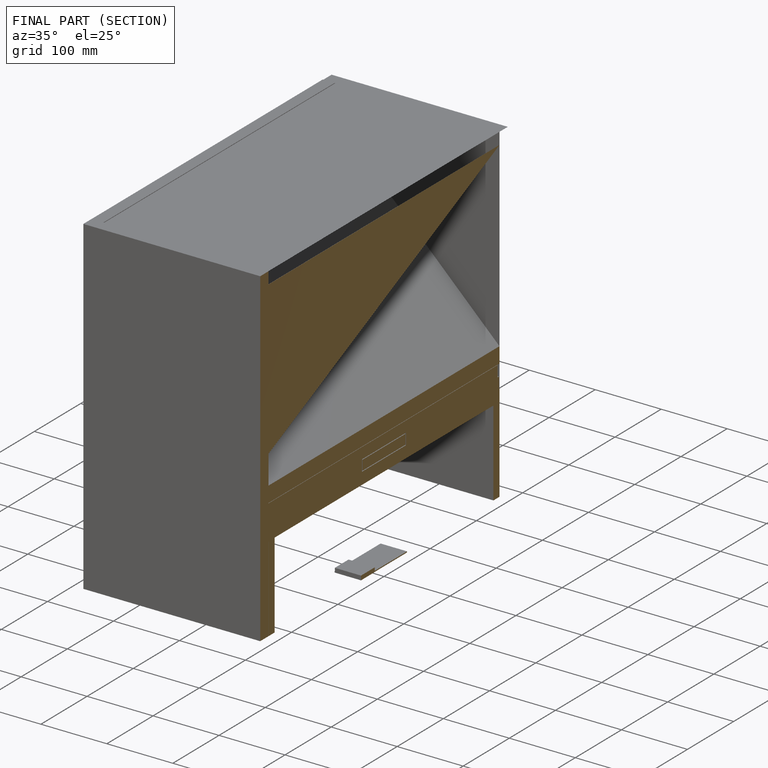
[diagram: finished part — half-section view (interior)]
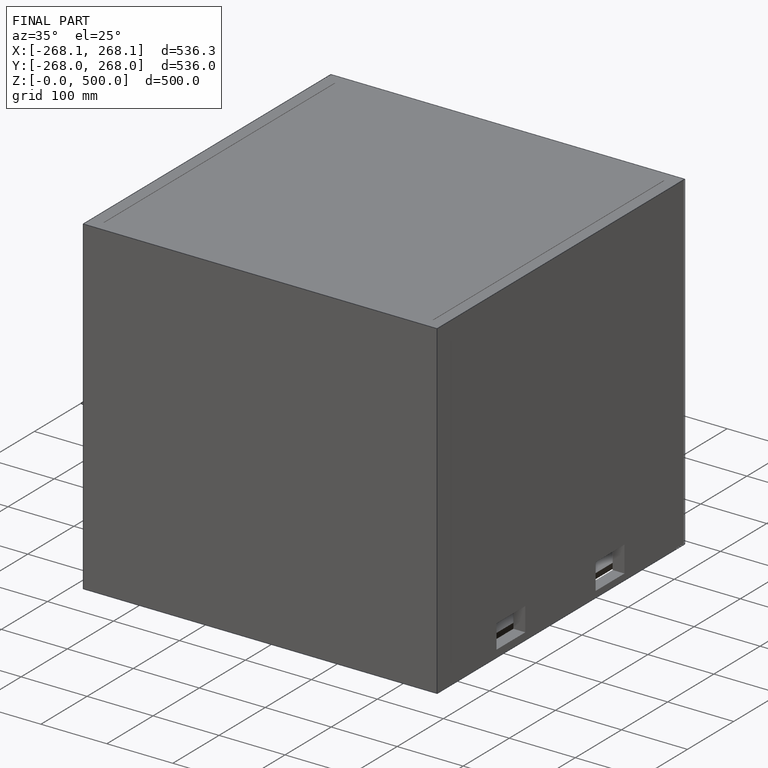
[diagram: finished part — iso view with bounding-box wireframe]
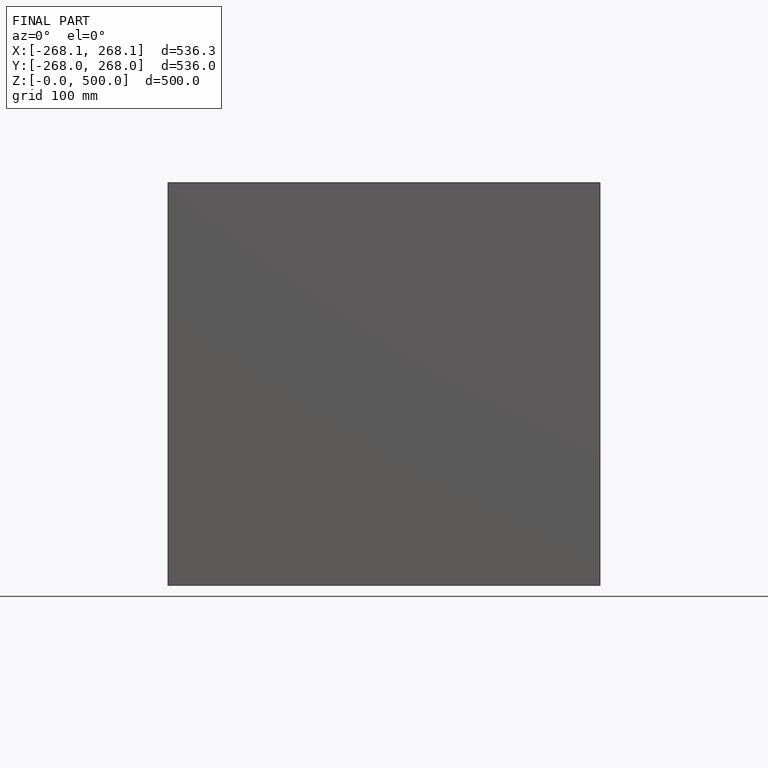
[diagram: finished part — front view with bounding-box wireframe]
